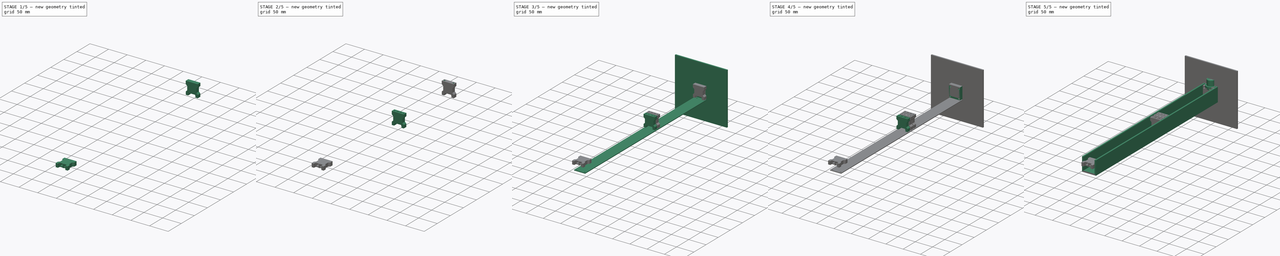
[diagram: build sequence overview — one tinted view per stage of 5, left to right]
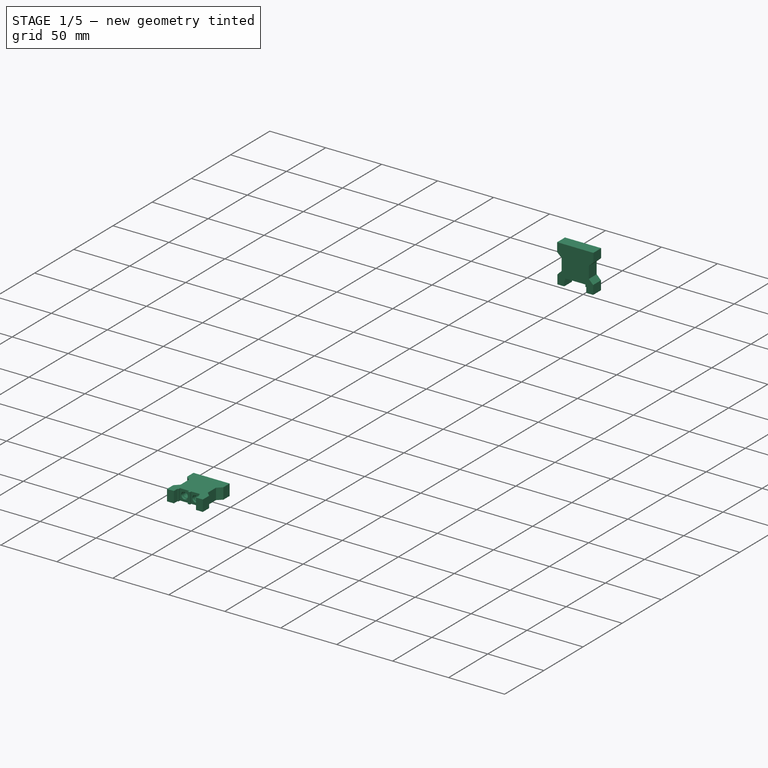
[diagram: stage 1 of 5 — iso view after this stage's code; geometry added in this stage tinted green]
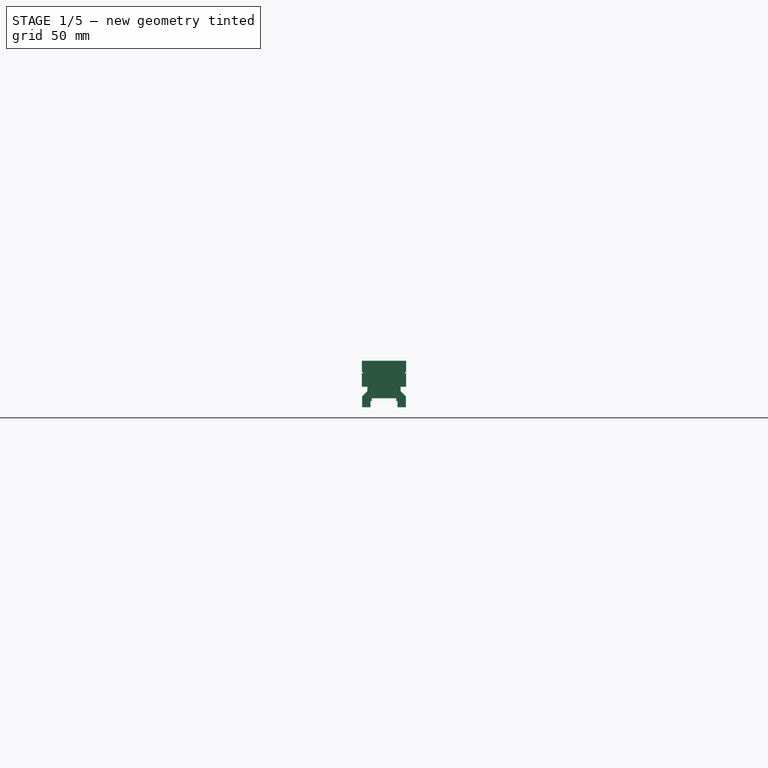
[diagram: stage 1 of 5 — front view after this stage's code; geometry added in this stage tinted green]
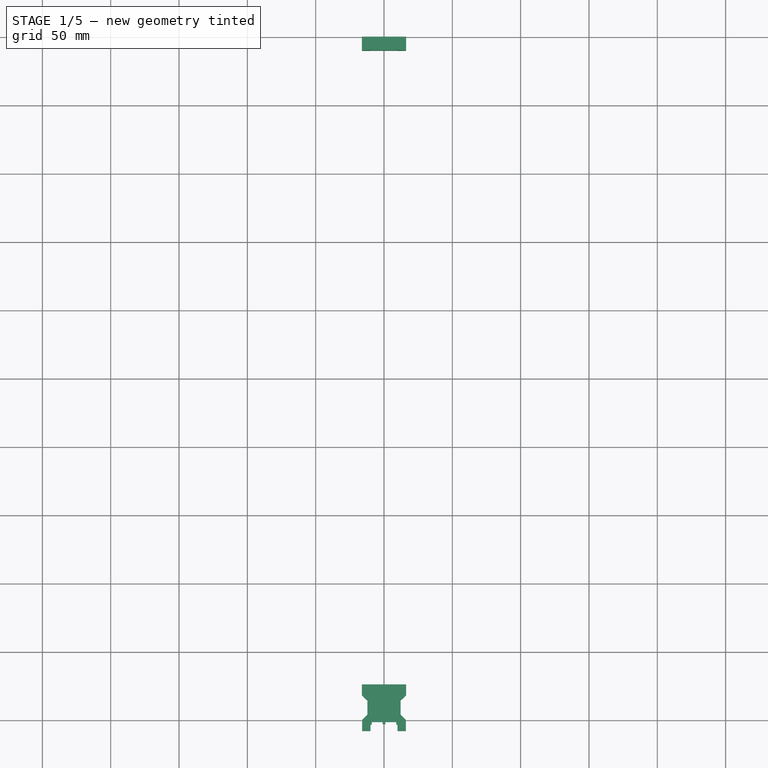
[diagram: stage 1 of 5 — top view after this stage's code; geometry added in this stage tinted green]
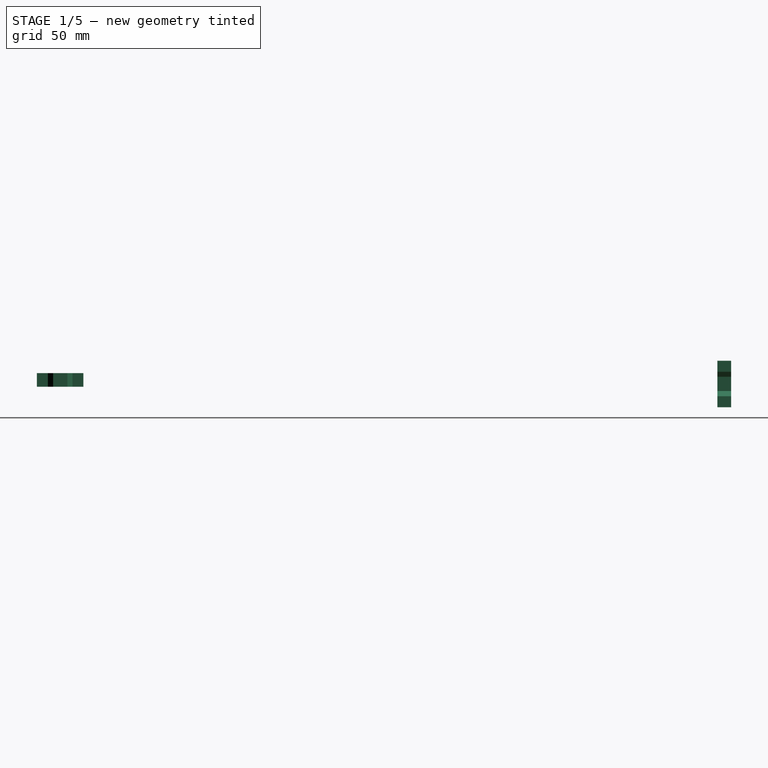
[diagram: stage 1 of 5 — right view after this stage's code; geometry added in this stage tinted green]
FCSTD DOCUMENT  (FreeCAD 0.20R)
Label: Alu-Calibration
License: All rights reserved
LicenseURL: http://en.wikipedia.org/wiki/All_rights_reserved
objects: Sketcher::SketchObject×39, PartDesign::Pocket×18, PartDesign::Pad×13, PartDesign::Body×13, Part::Feature×6, App::Part×6, Part::Loft×4, Part::Mirroring×4, Part::MultiFuse×4, Part::Cut×4, Part::Part2DObjectPython×3, PartDesign::Revolution×2, App::DocumentObjectGroup×1, PartDesign::Draft×1
note: 145 computed .brp shape members not serialized (recipe doc carries the construction recipe); baked Part::Feature solids carry a one-line shape summary decoded from their .brp

FEATURE [Sketcher::SketchObject] Sketch062
  FullyConstrained = true
  MapMode = 5
  Placement = pos=(0,0,0) rot=(1,0,0;1.5708rad)
  Support = -> [XZ_Plane030]
  sketch-geometry (22):
    g0: LineSegment StartX=-16 StartY=4 StartZ=0 EndX=-9.85 EndY=4 EndZ=0
    g1: LineSegment StartX=9.85 StartY=4 StartZ=0 EndX=16 EndY=4 EndZ=0
    g2: LineSegment StartX=16.15 StartY=38 StartZ=0 EndX=-16.15 EndY=38 EndZ=0
    g3: LineSegment StartX=-9.85 StartY=8.6 StartZ=0 EndX=-9 EndY=8.6 EndZ=0
    g4: LineSegment StartX=-9 StartY=8.6 StartZ=0 EndX=-9 EndY=10.6 EndZ=0
    g5: LineSegment StartX=-9 StartY=10.6 StartZ=0 EndX=9 EndY=10.6 EndZ=0
    g6: LineSegment StartX=9 StartY=10.6 StartZ=0 EndX=9 EndY=8.6 EndZ=0
    g7: LineSegment StartX=9 StartY=8.6 StartZ=0 EndX=9.85 EndY=8.6 EndZ=0
    g8: LineSegment StartX=-16 StartY=4 StartZ=0 EndX=-16 EndY=12 EndZ=0
    g9: LineSegment StartX=-16 StartY=12 StartZ=0 EndX=-12.15 EndY=15.85 EndZ=0
    g10: LineSegment StartX=-12.15 StartY=15.85 StartZ=0 EndX=-12.15 EndY=26.3061 EndZ=0
    g11: LineSegment StartX=-12.15 StartY=26.3061 StartZ=0 EndX=-16.15 EndY=30 EndZ=0
    g12: LineSegment StartX=-16.15 StartY=30 StartZ=0 EndX=-16.15 EndY=38 EndZ=0
    g13: LineSegment StartX=16.15 StartY=38 StartZ=0 EndX=16.15 EndY=30 EndZ=0
    g14: LineSegment StartX=16.15 StartY=30 StartZ=0 EndX=12.15 EndY=26.3061 EndZ=0
    g15: LineSegment StartX=12.15 StartY=26.3061 StartZ=0 EndX=12.15 EndY=15.85 EndZ=0
    g16: LineSegment StartX=12.15 StartY=15.85 StartZ=0 EndX=16 EndY=12 EndZ=0
    g17: LineSegment StartX=16 StartY=12 StartZ=0 EndX=16 EndY=4 EndZ=0
    g18: LineSegment StartX=9.85 StartY=8.6 StartZ=0 EndX=9.85 EndY=7 EndZ=0
    g19: LineSegment StartX=9.85 StartY=7 StartZ=0 EndX=9.85 EndY=4 EndZ=0
    g20: LineSegment StartX=-9.85 StartY=8.6 StartZ=0 EndX=-9.85 EndY=7 EndZ=0
    g21: LineSegment StartX=-9.85 StartY=7 StartZ=0 EndX=-9.85 EndY=4 EndZ=0
  constraints (60):
    c: Horizontal(g0)
    c: Horizontal(g1)
    c: Symmetric(g3,g7,g-2)
    c: Symmetric(g2,g2,g-2)
    c: DistanceX(g2,g2) = 32.3
    c: DistanceY(g0,g2) = 34
    c: DistanceY(g0) = 4
    c: DistanceX(g3,g7) = 19.7
    c: Horizontal(g3)
    c: Coincident(g3,g4)
    c: Vertical(g4)
    c: Coincident(g4,g5)
    c: Coincident(g5,g6)
    c: Vertical(g6)
    c: Coincident(g6,g7)
    c: Horizontal(g7)
    c: Symmetric(g4,g5,g-2)
    c: DistanceX(g5,g5) = 18
    c: DistanceY(g1,g7) = 4.6
    c: DistanceY(g4,g4) = 2
    c: Coincident(g0,g8)
    c: Vertical(g8)
    c: Coincident(g8,g9)
    c: Coincident(g9,g10)
    c: Vertical(g10)
    c: Coincident(g10,g11)
    c: Coincident(g11,g12)
    c: Coincident(g12,g2)
    c: Vertical(g12)
    c: Coincident(g2,g13)
    c: Vertical(g13)
    c: Coincident(g13,g14)
    c: Coincident(g14,g15)
    c: Vertical(g15)
    c: Coincident(g15,g16)
    c: Coincident(g16,g17)
    c: Coincident(g17,g1)
    c: Vertical(g17)
    c: Symmetric(g14,g10,g-2)
    c: Equal(g10,g15)
    c: DistanceX(g11,g11) = 4
    c: DistanceY(g8,g8) = 8
    c: DistanceY(g12,g12) = 8
    c: Angle(g8,g9) = 2.35619
    c: Symmetric(g16,g8,g-2)
    c: Equal(g11,g14)
    c: Equal(g14,g16)
    c: DistanceX(g0,g1) = 32
    c: Coincident(g18,g7)
    c: Vertical(g18)
    c: Coincident(g19,g18)
    c: Coincident(g1,g19)
    c: DistanceY(g18,g18) = 1.6
    c: Coincident(g20,g3)
    c: Vertical(g20)
    c: Coincident(g21,g20)
    c: Coincident(g0,g21)
    c: Symmetric(g0,g1,g-2)
    c: Equal(g20,g18)
    c: Vertical(g19)
FEATURE [PartDesign::Pad] Pad030
  Direction = (0,-1,-2e-16)
  Length = 10
  Length2 = 10
  Placement = pos=(0,0,0) rot=(1,0,0;1.5708rad)
  Profile = -> Sketch062
  ReferenceAxis = -> Sketch062 [N_Axis]
  Type = 0
FEATURE [Sketcher::SketchObject] Sketch063
  FullyConstrained = true
  MapMode = 5
  Placement = pos=(0,0,10.6) rot=(1,0,0;3.14159rad)
  Support = -> [Pad030]
  sketch-geometry (3):
    g0: Circle CenterX=-5 CenterY=5 CenterZ=0 NormalX=0 NormalY=0 NormalZ=1 AngleXU=0 Radius=2.6
    g1: Circle CenterX=5 CenterY=5 CenterZ=0 NormalX=0 NormalY=0 NormalZ=1 AngleXU=0 Radius=2.6
    g2: LineSegment StartX=-5 StartY=5 StartZ=0 EndX=5 EndY=5 EndZ=0
  constraints (7):
    c: Coincident(g2,g0)
    c: Coincident(g2,g1)
    c: Equal(g0,g1)
    c: Radius(g0) = 2.6
    c: Symmetric(g0,g1,g-2)
    c: DistanceY(g0) = 5
    c: DistanceX(g2,g2) = 10
FEATURE [PartDesign::Pocket] Pocket025
  BaseFeature = -> Pad030
  Direction = (0,0,1)
  Length = 8
  Length2 = 5
  Placement = pos=(0,0,0) rot=(1,0,0;1.5708rad)
  Profile = -> Sketch063
  ReferenceAxis = -> Sketch063 [N_Axis]
  Type = 0
FEATURE [Sketcher::SketchObject] Sketch068
  FullyConstrained = true
  MapMode = 5
  Placement = pos=(0,0,0) rot=(1,0,0;1.5708rad)
  Support = -> [XZ_Plane031]
  sketch-geometry (26):
    g0: LineSegment StartX=-16 StartY=4 StartZ=0 EndX=-9.85 EndY=4 EndZ=0
    g1: LineSegment StartX=9.85 StartY=4 StartZ=0 EndX=16 EndY=4 EndZ=0
    g2: LineSegment StartX=16.15 StartY=38 StartZ=0 EndX=-16.15 EndY=38 EndZ=0
    g3: LineSegment StartX=-9.85 StartY=8.6 StartZ=0 EndX=-9 EndY=8.6 EndZ=0
    g4: LineSegment StartX=-9 StartY=8.6 StartZ=0 EndX=-9 EndY=10.6 EndZ=0
    g5: LineSegment StartX=9 StartY=10.6 StartZ=0 EndX=9 EndY=8.6 EndZ=0
    g6: LineSegment StartX=9 StartY=8.6 StartZ=0 EndX=9.85 EndY=8.6 EndZ=0
    g7: LineSegment StartX=-16 StartY=4 StartZ=0 EndX=-16 EndY=12 EndZ=0
    g8: LineSegment StartX=-16 StartY=12 StartZ=0 EndX=-12.15 EndY=15.85 EndZ=0
    g9: LineSegment StartX=-12.15 StartY=15.85 StartZ=0 EndX=-12.15 EndY=26.3061 EndZ=0
    g10: LineSegment StartX=-12.15 StartY=26.3061 StartZ=0 EndX=-16.15 EndY=30 EndZ=0
    g11: LineSegment StartX=-16.15 StartY=30 StartZ=0 EndX=-16.15 EndY=38 EndZ=0
    g12: LineSegment StartX=16.15 StartY=38 StartZ=0 EndX=16.15 EndY=30 EndZ=0
    g13: LineSegment StartX=16.15 StartY=30 StartZ=0 EndX=12.15 EndY=26.3061 EndZ=0
    g14: LineSegment StartX=12.15 StartY=26.3061 StartZ=0 EndX=12.15 EndY=15.85 EndZ=0
    g15: LineSegment StartX=12.15 StartY=15.85 StartZ=0 EndX=16 EndY=12 EndZ=0
    g16: LineSegment StartX=16 StartY=12 StartZ=0 EndX=16 EndY=4 EndZ=0
    g17: LineSegment StartX=9.85 StartY=8.6 StartZ=0 EndX=9.85 EndY=7 EndZ=0
    g18: LineSegment StartX=9.85 StartY=7 StartZ=0 EndX=9.85 EndY=4 EndZ=0
    g19: LineSegment StartX=-9.85 StartY=8.6 StartZ=0 EndX=-9.85 EndY=7 EndZ=0
    g20: LineSegment StartX=-9.85 StartY=7 StartZ=0 EndX=-9.85 EndY=4 EndZ=0
    g21: LineSegment StartX=-9 StartY=10.6 StartZ=0 EndX=-1 EndY=10.6 EndZ=0
    g22: LineSegment StartX=-1 StartY=10.6 StartZ=0 EndX=-1 EndY=9 EndZ=0
    g23: LineSegment StartX=-1 StartY=9 StartZ=0 EndX=1 EndY=9 EndZ=0
    g24: LineSegment StartX=1 StartY=9 StartZ=0 EndX=1 EndY=10.6 EndZ=0
    g25: LineSegment StartX=1 StartY=10.6 StartZ=0 EndX=9 EndY=10.6 EndZ=0
  constraints (71):
    c: Horizontal(g0)
    c: Horizontal(g1)
    c: Symmetric(g3,g6,g-2)
    c: Symmetric(g2,g2,g-2)
    c: DistanceX(g2,g2) = 32.3
    c: DistanceY(g0,g2) = 34
    c: DistanceY(g0) = 4
    c: DistanceX(g3,g6) = 19.7
    c: Horizontal(g3)
    c: Coincident(g3,g4)
    c: Vertical(g4)
    c: Vertical(g5)
    c: Coincident(g5,g6)
    c: Horizontal(g6)
    c: Symmetric(g4,g5,g-2)
    c: DistanceX(g4,g5) = 18
    c: DistanceY(g1,g6) = 4.6
    c: DistanceY(g4,g4) = 2
    c: Coincident(g0,g7)
    c: Vertical(g7)
    c: Coincident(g7,g8)
    c: Coincident(g8,g9)
    c: Vertical(g9)
    c: Coincident(g9,g10)
    c: Coincident(g10,g11)
    c: Coincident(g11,g2)
    c: Vertical(g11)
    c: Coincident(g2,g12)
    c: Vertical(g12)
    c: Coincident(g12,g13)
    c: Coincident(g13,g14)
    c: Vertical(g14)
    c: Coincident(g14,g15)
    c: Coincident(g15,g16)
    c: Coincident(g16,g1)
    c: Vertical(g16)
    c: Symmetric(g13,g9,g-2)
    c: Equal(g9,g14)
    c: DistanceX(g10,g10) = 4
    c: DistanceY(g7,g7) = 8
    c: DistanceY(g11,g11) = 8
    c: Angle(g7,g8) = 2.35619
    c: Symmetric(g15,g7,g-2)
    c: Equal(g10,g13)
    c: Equal(g13,g15)
    c: DistanceX(g0,g1) = 32
    c: Coincident(g17,g6)
    c: Vertical(g17)
    c: Coincident(g18,g17)
    c: Coincident(g1,g18)
    c: DistanceY(g17,g17) = 1.6
    c: Coincident(g19,g3)
    c: Vertical(g19)
    c: Coincident(g20,g19)
    c: Coincident(g0,g20)
    c: Symmetric(g0,g1,g-2)
    c: Equal(g19,g17)
    c: Vertical(g18)
    c: Coincident(g21,g4)
    c: Horizontal(g21)
    c: Vertical(g22)
    c: Coincident(g23,g22)
    c: Horizontal(g23)
    c: Coincident(g24,g23)
    c: Vertical(g24)
    c: Coincident(g25,g5)
    c: Coincident(g21,g22)
    c: Coincident(g24,g25)
    c: Symmetric(g21,g24,g-2)
    c: DistanceY(g24,g24) = 1.6
    c: DistanceX(g23,g23) = 2
FEATURE [PartDesign::Pad] Pad031
  Direction = (0,-1,-2e-16)
  Length = 10
  Length2 = 10
  Placement = pos=(0,0,0) rot=(1,0,0;1.5708rad)
  Profile = -> Sketch068
  ReferenceAxis = -> Sketch068 [N_Axis]
  Type = 0
FEATURE [Sketcher::SketchObject] Sketch069
  FullyConstrained = true
  MapMode = 5
  Placement = pos=(0,-2.4e-15,10.6) rot=(1,0,0;3.14159rad)
  Support = -> [Pad031]
  sketch-geometry (3):
    g0: Circle CenterX=-5 CenterY=5 CenterZ=0 NormalX=0 NormalY=0 NormalZ=1 AngleXU=0 Radius=2.6
    g1: Circle CenterX=5 CenterY=5 CenterZ=0 NormalX=0 NormalY=0 NormalZ=1 AngleXU=0 Radius=2.6
    g2: LineSegment StartX=-5 StartY=5 StartZ=0 EndX=5 EndY=5 EndZ=0
  constraints (7):
    c: Coincident(g2,g0)
    c: Coincident(g2,g1)
    c: Equal(g0,g1)
    c: Radius(g0) = 2.6
    c: Symmetric(g0,g1,g-2)
    c: DistanceY(g0) = 5
    c: DistanceX(g2,g2) = 10
FEATURE [PartDesign::Pocket] Pocket028
  BaseFeature = -> Pad031
  Direction = (0,-2e-16,1)
  Length = 10
  Length2 = 5
  Placement = pos=(0,0,0) rot=(1,0,0;1.5708rad)
  Profile = -> Sketch069
  ReferenceAxis = -> Sketch069 [N_Axis]
  Type = 0
FEATURE [Sketcher::SketchObject] Sketch070
  ExternalGeometry = -> [Pocket028]
  FullyConstrained = true
  MapMode = 5
  Placement = pos=(0,-2.4e-15,10.6) rot=(1,0,0;3.14159rad)
  Support = -> [Pocket028]
  sketch-geometry (2):
    g0: Circle CenterX=-5 CenterY=5 CenterZ=0 NormalX=0 NormalY=0 NormalZ=1 AngleXU=0 Radius=3
    g1: Circle CenterX=5 CenterY=5 CenterZ=0 NormalX=0 NormalY=0 NormalZ=1 AngleXU=0 Radius=3
  constraints (4):
    c: Radius(g0) = 3
    c: Equal(g1,g0)
    c: Symmetric(g1,g0,g-2)
    c: Coincident(g0,g-3)
FEATURE [PartDesign::Pocket] Pocket029
  BaseFeature = -> Pocket028
  Direction = (0,-2e-16,1)
  Length = 2
  Length2 = 5
  Placement = pos=(0,0,0) rot=(1,0,0;1.5708rad)
  Profile = -> Sketch070
  ReferenceAxis = -> Sketch070 [N_Axis]
  Type = 0
FEATURE [Sketcher::SketchObject] Sketch071
  AttachmentOffset = pos=(0,0,38) rot=(0,0,1;0rad)
  FullyConstrained = true
  MapMode = 5
  Placement = pos=(0,0,38) rot=(0,0,1;0rad)
  sketch-geometry (4):
    g0: ArcOfCircle CenterX=-6.3 CenterY=0 CenterZ=0 NormalX=0 NormalY=0 NormalZ=1 AngleXU=0 Radius=3 StartAngle=1.5708 EndAngle=4.71239
    g1: ArcOfCircle CenterX=-3.3 CenterY=0 CenterZ=0 NormalX=0 NormalY=0 NormalZ=1 AngleXU=0 Radius=3 StartAngle=4.71239 EndAngle=7.85398
    g2: LineSegment StartX=-6.3 StartY=-3 StartZ=0 EndX=-3.3 EndY=-3 EndZ=0
    g3: LineSegment StartX=-3.3 StartY=3 StartZ=0 EndX=-6.3 EndY=3 EndZ=0
  constraints (10):
    c: Tangent(g0,g2) = -1.5708
    c: Tangent(g2,g1) = -1.5708
    c: Tangent(g1,g3) = -1.5708
    c: Tangent(g3,g0) = -1.5708
    c: Equal(g0,g1)
    c: Horizontal(g3)
    c: DistanceX(g3,g3) = 3
    c: Radius(g1) = 3
    c: DistanceX(g1) = -3.3
    c: PointOnObject(g1,g-1)
FEATURE [Sketcher::SketchObject] Sketch072
  AttachmentOffset = pos=(0,0,18) rot=(0,0,1;0rad)
  FullyConstrained = true
  MapMode = 5
  Placement = pos=(0,0,20) rot=(0,0,1;0rad)
  sketch-geometry (1):
    g0: Circle CenterX=-5 CenterY=0 CenterZ=0 NormalX=0 NormalY=0 NormalZ=1 AngleXU=0 Radius=2.7
  constraints (3):
    c: PointOnObject(g0,g-1)
    c: DistanceX(g0) = -5
    c: Radius(g0) = 2.7
FEATURE [Part::Loft] Loft004
  Closed = false
  MaxDegree = 5
  Ruled = false
  Sections = -> [Sketch072,Sketch071]
  Solid = true
FEATURE [Part::Mirroring] Part__Mirroring004  label="Loft001 (Mirror #2)003"
  Base = (0,0,0)
  Normal = (1,0,0)
  Source = -> Loft004
FEATURE [Part::MultiFuse] Fusion004
  Shapes = -> [Loft004,Part__Mirroring004]
FEATURE [Sketcher::SketchObject] Sketch073
  FullyConstrained = true
  MapMode = 5
  Placement = pos=(0,-8.4e-15,38) rot=(0,0,1;3.14159rad)
  Support = -> [Pocket029]
  sketch-geometry (3):
    g0: Circle CenterX=-12 CenterY=5 CenterZ=0 NormalX=0 NormalY=0 NormalZ=1 AngleXU=0 Radius=2
    g1: Circle CenterX=12 CenterY=5 CenterZ=0 NormalX=0 NormalY=0 NormalZ=1 AngleXU=0 Radius=2
    g2: LineSegment StartX=-12 StartY=5 StartZ=0 EndX=12 EndY=5 EndZ=0
  constraints (7):
    c: Coincident(g2,g0)
    c: Coincident(g2,g1)
    c: Symmetric(g0,g1,g-2)
    c: DistanceX(g2,g2) = 24
    c: Equal(g0,g1)
    c: Radius(g1) = 2
    c: DistanceY(g0) = 5
FEATURE [PartDesign::Pocket] Pocket030
  BaseFeature = -> Pocket029
  Direction = (0,2e-16,-1)
  Length = 8
  Length2 = 5
  Placement = pos=(0,0,0) rot=(1,0,0;1.5708rad)
  Profile = -> Sketch073
  ReferenceAxis = -> Sketch073 [N_Axis]
  Type = 0
FEATURE [PartDesign::Body] Body025
  Group = -> [Sketch068,Pad031,Sketch069,Pocket028,Sketch070,Pocket029,Sketch073,Pocket030]
  Origin = -> Origin031
  Placement = pos=(0,5,0) rot=(0,0,1;0rad)
  Tip = -> Pocket030
FEATURE [Part::Cut] Cut003  label="Sensor-holder-sun-3"
  Base = -> Body025
  Placement = pos=(0,-512,24) rot=(-1,0,0;1.5708rad)
  Tool = -> Fusion004
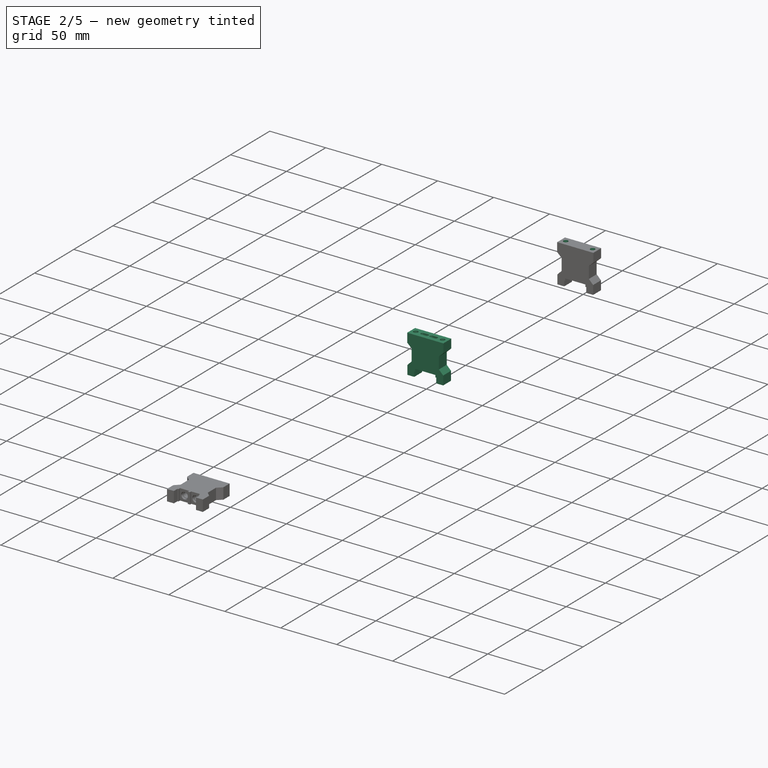
[diagram: stage 2 of 5 — iso view after this stage's code; geometry added in this stage tinted green]
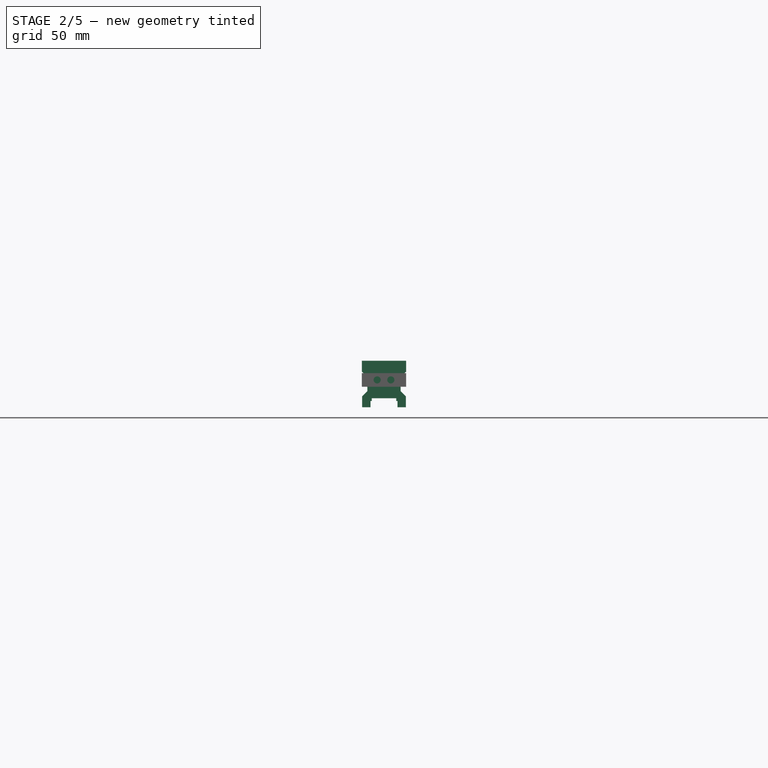
[diagram: stage 2 of 5 — front view after this stage's code; geometry added in this stage tinted green]
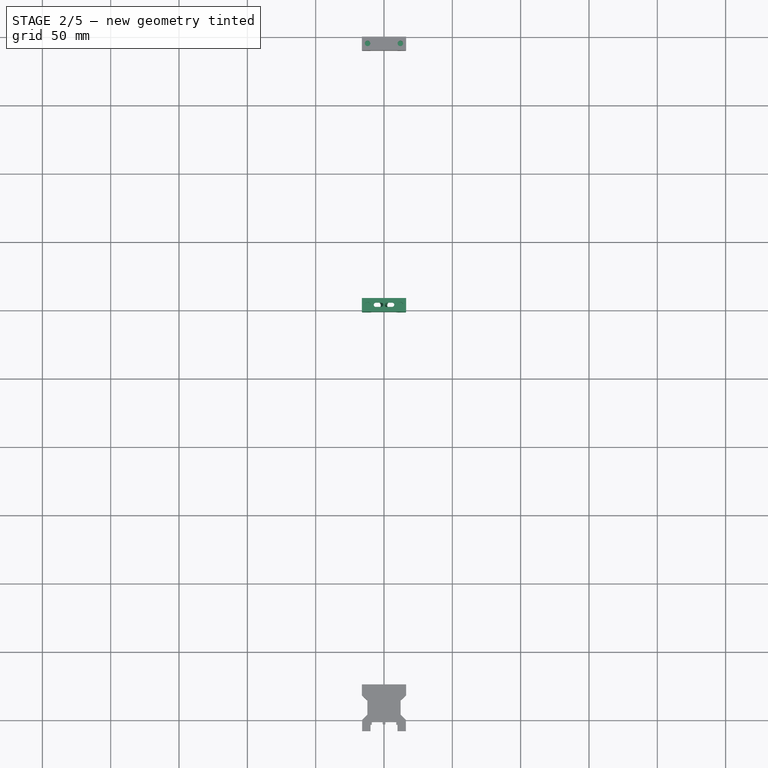
[diagram: stage 2 of 5 — top view after this stage's code; geometry added in this stage tinted green]
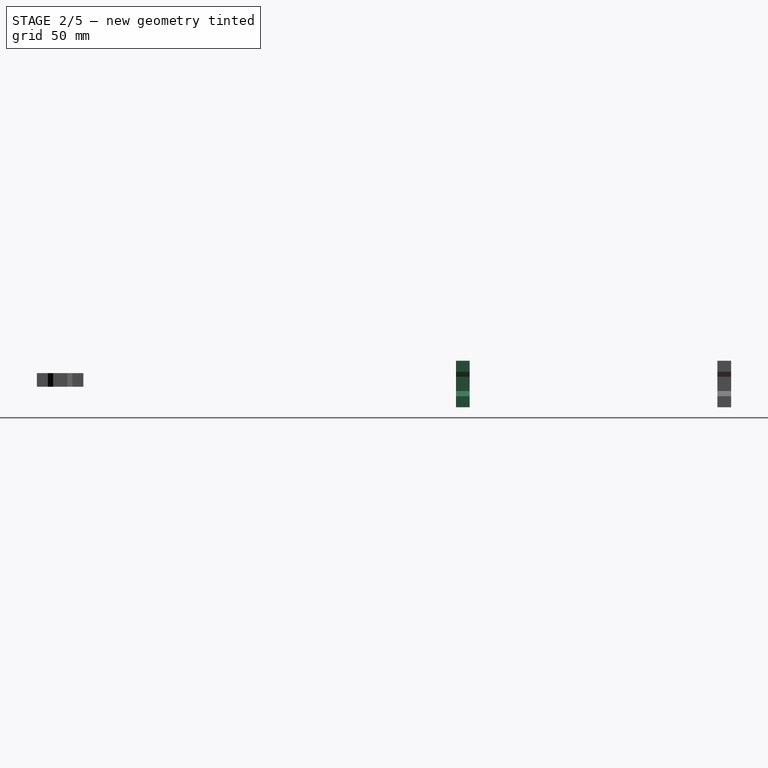
[diagram: stage 2 of 5 — right view after this stage's code; geometry added in this stage tinted green]
FEATURE [PartDesign::Body] Body021  label="Rubber-Feet"
  Group = -> [Sketch053,Pad027,Draft]
  Origin = -> Origin027
  Placement = pos=(-65,6,-45) rot=(0,0,1;0rad)
  Tip = -> Draft
FEATURE [Sketcher::SketchObject] Sketch056
  FullyConstrained = true
  MapMode = 5
  Placement = pos=(0,0,0) rot=(1,0,0;1.5708rad)
  Support = -> [XZ_Plane029]
  sketch-geometry (22):
    g0: LineSegment StartX=-16 StartY=4 StartZ=0 EndX=-9.85 EndY=4 EndZ=0
    g1: LineSegment StartX=9.85 StartY=4 StartZ=0 EndX=16 EndY=4 EndZ=0
    g2: LineSegment StartX=16.15 StartY=38 StartZ=0 EndX=-16.15 EndY=38 EndZ=0
    g3: LineSegment StartX=-9.85 StartY=8.6 StartZ=0 EndX=-9 EndY=8.6 EndZ=0
    g4: LineSegment StartX=-9 StartY=8.6 StartZ=0 EndX=-9 EndY=10.6 EndZ=0
    g5: LineSegment StartX=-9 StartY=10.6 StartZ=0 EndX=9 EndY=10.6 EndZ=0
    g6: LineSegment StartX=9 StartY=10.6 StartZ=0 EndX=9 EndY=8.6 EndZ=0
    g7: LineSegment StartX=9 StartY=8.6 StartZ=0 EndX=9.85 EndY=8.6 EndZ=0
    g8: LineSegment StartX=-16 StartY=4 StartZ=0 EndX=-16 EndY=12 EndZ=0
    g9: LineSegment StartX=-16 StartY=12 StartZ=0 EndX=-12.15 EndY=15.85 EndZ=0
    g10: LineSegment StartX=-12.15 StartY=15.85 StartZ=0 EndX=-12.15 EndY=26.3061 EndZ=0
    g11: LineSegment StartX=-12.15 StartY=26.3061 StartZ=0 EndX=-16.15 EndY=30 EndZ=0
    g12: LineSegment StartX=-16.15 StartY=30 StartZ=0 EndX=-16.15 EndY=38 EndZ=0
    g13: LineSegment StartX=16.15 StartY=38 StartZ=0 EndX=16.15 EndY=30 EndZ=0
    g14: LineSegment StartX=16.15 StartY=30 StartZ=0 EndX=12.15 EndY=26.3061 EndZ=0
    g15: LineSegment StartX=12.15 StartY=26.3061 StartZ=0 EndX=12.15 EndY=15.85 EndZ=0
    g16: LineSegment StartX=12.15 StartY=15.85 StartZ=0 EndX=16 EndY=12 EndZ=0
    g17: LineSegment StartX=16 StartY=12 StartZ=0 EndX=16 EndY=4 EndZ=0
    g18: LineSegment StartX=9.85 StartY=8.6 StartZ=0 EndX=9.85 EndY=7 EndZ=0
    g19: LineSegment StartX=9.85 StartY=7 StartZ=0 EndX=9.85 EndY=4 EndZ=0
    g20: LineSegment StartX=-9.85 StartY=8.6 StartZ=0 EndX=-9.85 EndY=7 EndZ=0
    g21: LineSegment StartX=-9.85 StartY=7 StartZ=0 EndX=-9.85 EndY=4 EndZ=0
  constraints (60):
    c: Horizontal(g0)
    c: Horizontal(g1)
    c: Symmetric(g3,g7,g-2)
    c: Symmetric(g2,g2,g-2)
    c: DistanceX(g2,g2) = 32.3
    c: DistanceY(g0,g2) = 34
    c: DistanceY(g0) = 4
    c: DistanceX(g3,g7) = 19.7
    c: Horizontal(g3)
    c: Coincident(g3,g4)
    c: Vertical(g4)
    c: Coincident(g4,g5)
    c: Coincident(g5,g6)
    c: Vertical(g6)
    c: Coincident(g6,g7)
    c: Horizontal(g7)
    c: Symmetric(g4,g5,g-2)
    c: DistanceX(g5,g5) = 18
    c: DistanceY(g1,g7) = 4.6
    c: DistanceY(g4,g4) = 2
    c: Coincident(g0,g8)
    c: Vertical(g8)
    c: Coincident(g8,g9)
    c: Coincident(g9,g10)
    c: Vertical(g10)
    c: Coincident(g10,g11)
    c: Coincident(g11,g12)
    c: Coincident(g12,g2)
    c: Vertical(g12)
    c: Coincident(g2,g13)
    c: Vertical(g13)
    c: Coincident(g13,g14)
    c: Coincident(g14,g15)
    c: Vertical(g15)
    c: Coincident(g15,g16)
    c: Coincident(g16,g17)
    c: Coincident(g17,g1)
    c: Vertical(g17)
    c: Symmetric(g14,g10,g-2)
    c: Equal(g10,g15)
    c: DistanceX(g11,g11) = 4
    c: DistanceY(g8,g8) = 8
    c: DistanceY(g12,g12) = 8
    c: Angle(g8,g9) = 2.35619
    c: Symmetric(g16,g8,g-2)
    c: Equal(g11,g14)
    c: Equal(g14,g16)
    c: DistanceX(g0,g1) = 32
    c: Coincident(g18,g7)
    c: Vertical(g18)
    c: Coincident(g19,g18)
    c: Coincident(g1,g19)
    c: DistanceY(g18,g18) = 1.6
    c: Coincident(g20,g3)
    c: Vertical(g20)
    c: Coincident(g21,g20)
    c: Coincident(g0,g21)
    c: Symmetric(g0,g1,g-2)
    c: Equal(g20,g18)
    c: Vertical(g19)
FEATURE [PartDesign::Pad] Pad029
  Direction = (0,-1,-2e-16)
  Length = 10
  Length2 = 10
  Placement = pos=(0,0,0) rot=(1,0,0;1.5708rad)
  Profile = -> Sketch056
  ReferenceAxis = -> Sketch056 [N_Axis]
  Type = 0
FEATURE [Sketcher::SketchObject] Sketch057
  FullyConstrained = true
  MapMode = 5
  Placement = pos=(0,0,10.6) rot=(1,0,0;3.14159rad)
  Support = -> [Pad029]
  sketch-geometry (3):
    g0: Circle CenterX=-5 CenterY=5 CenterZ=0 NormalX=0 NormalY=0 NormalZ=1 AngleXU=0 Radius=2.6
    g1: Circle CenterX=5 CenterY=5 CenterZ=0 NormalX=0 NormalY=0 NormalZ=1 AngleXU=0 Radius=2.6
    g2: LineSegment StartX=-5 StartY=5 StartZ=0 EndX=5 EndY=5 EndZ=0
  constraints (7):
    c: Coincident(g2,g0)
    c: Coincident(g2,g1)
    c: Equal(g0,g1)
    c: Radius(g0) = 2.6
    c: Symmetric(g0,g1,g-2)
    c: DistanceY(g0) = 5
    c: DistanceX(g2,g2) = 10
FEATURE [PartDesign::Pocket] Pocket022
  BaseFeature = -> Pad029
  Direction = (0,-2e-16,1)
  Length = 18
  Length2 = 5
  Placement = pos=(0,0,0) rot=(1,0,0;1.5708rad)
  Profile = -> Sketch057
  ReferenceAxis = -> Sketch057 [N_Axis]
  Type = 0
FEATURE [Sketcher::SketchObject] Sketch058
  ExternalGeometry = -> [Pocket022]
  FullyConstrained = true
  MapMode = 5
  Placement = pos=(0,0,10.6) rot=(1,0,0;3.14159rad)
  Support = -> [Pocket022]
  sketch-geometry (2):
    g0: Circle CenterX=-5 CenterY=5 CenterZ=0 NormalX=0 NormalY=0 NormalZ=1 AngleXU=0 Radius=3
    g1: Circle CenterX=5 CenterY=5 CenterZ=0 NormalX=0 NormalY=0 NormalZ=1 AngleXU=0 Radius=3
  constraints (4):
    c: Radius(g0) = 3
    c: Equal(g1,g0)
    c: Coincident(g1,g-4)
    c: Coincident(g0,g-3)
FEATURE [PartDesign::Pocket] Pocket023
  BaseFeature = -> Pocket022
  Direction = (0,-2e-16,1)
  Length = 10
  Length2 = 5
  Placement = pos=(0,0,0) rot=(1,0,0;1.5708rad)
  Profile = -> Sketch058
  ReferenceAxis = -> Sketch058 [N_Axis]
  Type = 0
FEATURE [Sketcher::SketchObject] Sketch061
  FullyConstrained = true
  MapMode = 5
  Placement = pos=(0,0,38) rot=(0,0,1;3.14159rad)
  Support = -> [Pocket023]
  sketch-geometry (3):
    g0: Circle CenterX=-12 CenterY=5 CenterZ=0 NormalX=0 NormalY=0 NormalZ=1 AngleXU=0 Radius=2
    g1: Circle CenterX=12 CenterY=5 CenterZ=0 NormalX=0 NormalY=0 NormalZ=1 AngleXU=0 Radius=2
    g2: LineSegment StartX=-12 StartY=5 StartZ=0 EndX=12 EndY=5 EndZ=0
  constraints (7):
    c: Coincident(g2,g0)
    c: Coincident(g2,g1)
    c: Symmetric(g0,g1,g-2)
    c: DistanceX(g2,g2) = 24
    c: Equal(g0,g1)
    c: Radius(g1) = 2
    c: DistanceY(g0) = 5
FEATURE [PartDesign::Pocket] Pocket024
  BaseFeature = -> Pocket023
  Direction = (0,2e-16,-1)
  Length = 8
  Length2 = 5
  Placement = pos=(0,0,0) rot=(1,0,0;1.5708rad)
  Profile = -> Sketch061
  ReferenceAxis = -> Sketch061 [N_Axis]
  Type = 0
FEATURE [Sketcher::SketchObject] Sketch064
  ExternalGeometry = -> [Pocket025]
  FullyConstrained = true
  MapMode = 5
  Placement = pos=(0,0,10.6) rot=(1,0,0;3.14159rad)
  Support = -> [Pocket025]
  sketch-geometry (2):
    g0: Circle CenterX=-5 CenterY=5 CenterZ=0 NormalX=0 NormalY=0 NormalZ=1 AngleXU=0 Radius=3
    g1: Circle CenterX=5 CenterY=5 CenterZ=0 NormalX=0 NormalY=0 NormalZ=1 AngleXU=0 Radius=3
  constraints (4):
    c: Radius(g0) = 3
    c: Equal(g1,g0)
    c: Coincident(g1,g-4)
    c: Coincident(g0,g-3)
FEATURE [PartDesign::Pocket] Pocket026
  BaseFeature = -> Pocket025
  Direction = (0,1e-16,1)
  Length = 1
  Length2 = 5
  Placement = pos=(0,0,0) rot=(1,0,0;1.5708rad)
  Profile = -> Sketch064
  ReferenceAxis = -> Sketch064 [N_Axis]
  Type = 0
FEATURE [Sketcher::SketchObject] Sketch065
  AttachmentOffset = pos=(0,0,38) rot=(0,0,1;0rad)
  FullyConstrained = true
  MapMode = 5
  Placement = pos=(0,0,38) rot=(0,0,1;0rad)
  sketch-geometry (4):
    g0: ArcOfCircle CenterX=-6 CenterY=1.145e-13 CenterZ=0 NormalX=0 NormalY=0 NormalZ=1 AngleXU=0 Radius=1.5 StartAngle=1.5708 EndAngle=4.71239
    g1: ArcOfCircle CenterX=-2 CenterY=0 CenterZ=0 NormalX=0 NormalY=0 NormalZ=1 AngleXU=0 Radius=1.5 StartAngle=4.71239 EndAngle=7.85398
    g2: LineSegment StartX=-6 StartY=-1.5 StartZ=0 EndX=-2 EndY=-1.5 EndZ=0
    g3: LineSegment StartX=-2 StartY=1.5 StartZ=0 EndX=-6 EndY=1.5 EndZ=0
  constraints (10):
    c: Tangent(g0,g2) = -1.5708
    c: Tangent(g2,g1) = -1.5708
    c: Tangent(g1,g3) = -1.5708
    c: Tangent(g3,g0) = -1.5708
    c: Equal(g0,g1)
    c: Horizontal(g3)
    c: DistanceX(g3,g3) = 4
    c: Radius(g1) = 1.5
    c: DistanceX(g1) = -2
    c: PointOnObject(g1,g-1)
FEATURE [Sketcher::SketchObject] Sketch066
  AttachmentOffset = pos=(0,0,18) rot=(0,0,1;0rad)
  FullyConstrained = true
  MapMode = 5
  Placement = pos=(0,0,18) rot=(0,0,1;0rad)
  sketch-geometry (1):
    g0: Circle CenterX=-5 CenterY=0 CenterZ=0 NormalX=0 NormalY=0 NormalZ=1 AngleXU=0 Radius=2.7
  constraints (3):
    c: PointOnObject(g0,g-1)
    c: DistanceX(g0) = -5
    c: Radius(g0) = 2.7
FEATURE [Part::Loft] Loft003
  Closed = false
  MaxDegree = 5
  Ruled = false
  Sections = -> [Sketch066,Sketch065]
  Solid = true
FEATURE [Part::Mirroring] Part__Mirroring003  label="Loft001 (Mirror #2)002"
  Base = (0,0,0)
  Normal = (1,0,0)
  Source = -> Loft003
FEATURE [Part::MultiFuse] Fusion003
  Shapes = -> [Loft003,Part__Mirroring003]
FEATURE [Sketcher::SketchObject] Sketch067
  FullyConstrained = true
  MapMode = 5
  Placement = pos=(0,0,38) rot=(0,0,1;3.14159rad)
  Support = -> [Pocket026]
  sketch-geometry (3):
    g0: Circle CenterX=-12 CenterY=5 CenterZ=0 NormalX=0 NormalY=0 NormalZ=1 AngleXU=0 Radius=2
    g1: Circle CenterX=12 CenterY=5 CenterZ=0 NormalX=0 NormalY=0 NormalZ=1 AngleXU=0 Radius=2
    g2: LineSegment StartX=-12 StartY=5 StartZ=0 EndX=12 EndY=5 EndZ=0
  constraints (7):
    c: Coincident(g2,g0)
    c: Coincident(g2,g1)
    c: Symmetric(g0,g1,g-2)
    c: DistanceX(g2,g2) = 24
    c: Equal(g0,g1)
    c: Radius(g1) = 2
    c: DistanceY(g0) = 5
FEATURE [PartDesign::Pocket] Pocket027
  BaseFeature = -> Pocket026
  Direction = (0,-2e-16,-1)
  Length = 8
  Length2 = 5
  Placement = pos=(0,0,0) rot=(1,0,0;1.5708rad)
  Profile = -> Sketch067
  ReferenceAxis = -> Sketch067 [N_Axis]
  Type = 0
FEATURE [PartDesign::Body] Body024
  Group = -> [Sketch062,Pad030,Sketch063,Pocket025,Sketch064,Pocket026,Sketch067,Pocket027]
  Origin = -> Origin030
  Placement = pos=(0,5,0) rot=(0,0,1;0rad)
  Tip = -> Pocket027
FEATURE [Part::Cut] Cut002  label="Sensor-holder-sun-2"
  Base = -> Body024
  Placement = pos=(0,-196.33,0) rot=(0,0,1;0rad)
  Tool = -> Fusion003
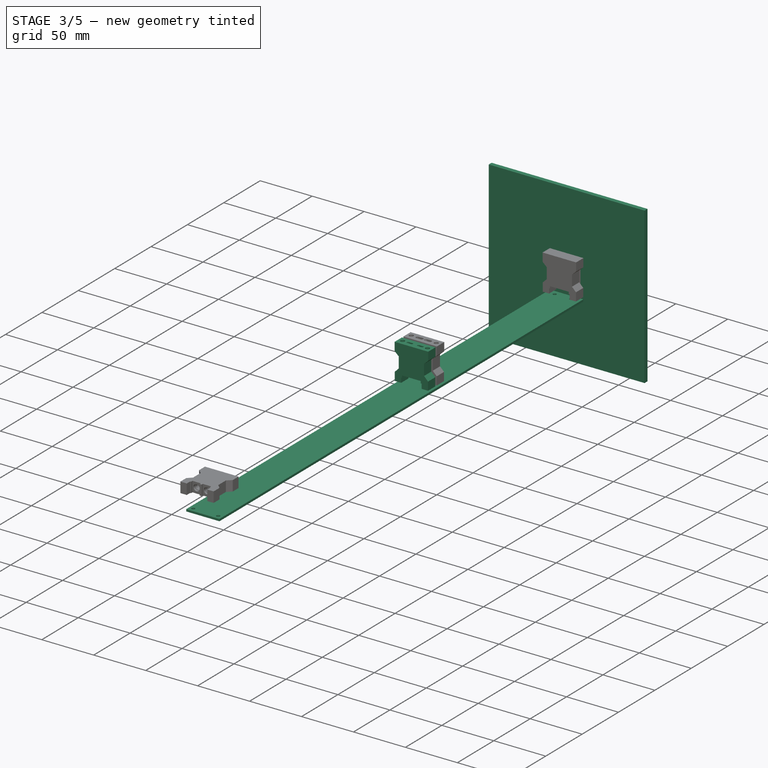
[diagram: stage 3 of 5 — iso view after this stage's code; geometry added in this stage tinted green]
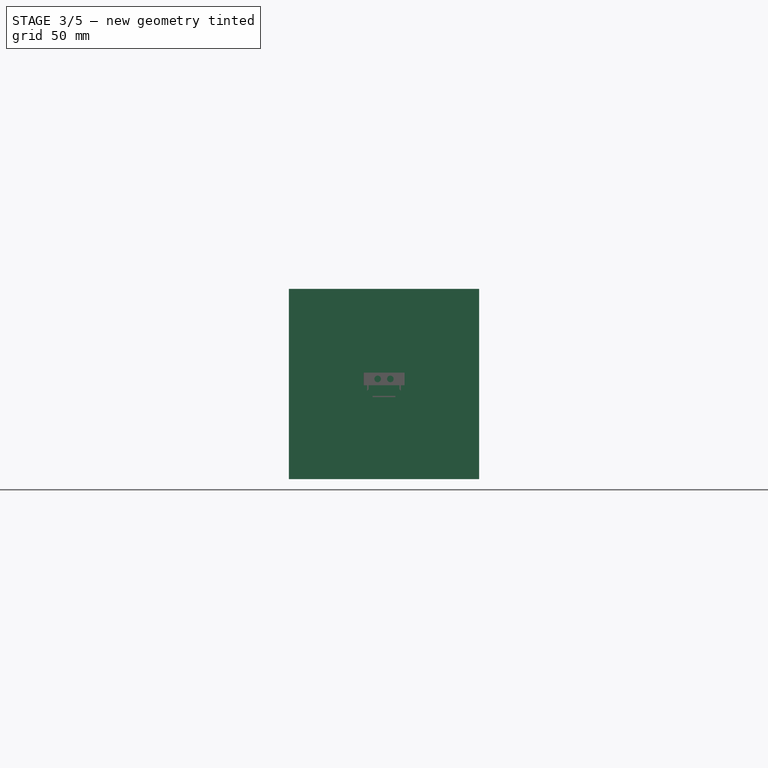
[diagram: stage 3 of 5 — front view after this stage's code; geometry added in this stage tinted green]
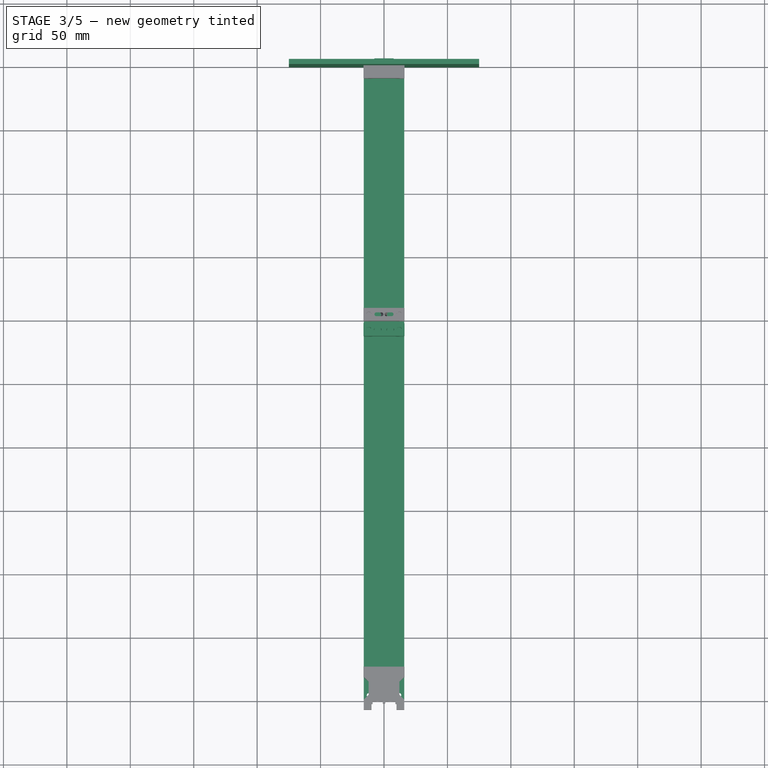
[diagram: stage 3 of 5 — top view after this stage's code; geometry added in this stage tinted green]
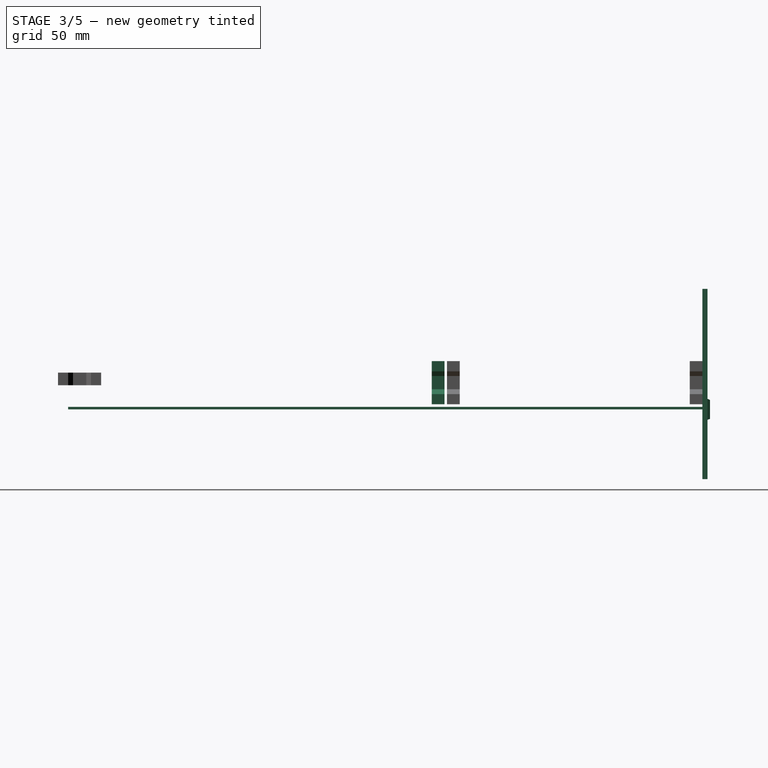
[diagram: stage 3 of 5 — right view after this stage's code; geometry added in this stage tinted green]
FEATURE [PartDesign::Body] Body008  label="USB-C"
  Group = -> [Sketch017,Revolution001]
  Origin = -> Origin014
  Placement = pos=(0,-25,-2) rot=(0,0,1;0rad)
  Tip = -> Revolution001
FEATURE [Sketcher::SketchObject] Sketch026
  FullyConstrained = true
  MapMode = 5
  Placement = pos=(0,0,0) rot=(1,0,0;1.5708rad)
  Support = -> [XZ_Plane017]
  sketch-geometry (22):
    g0: LineSegment StartX=-16 StartY=4 StartZ=0 EndX=-9.85 EndY=4 EndZ=0
    g1: LineSegment StartX=9.85 StartY=4 StartZ=0 EndX=16 EndY=4 EndZ=0
    g2: LineSegment StartX=16.15 StartY=38 StartZ=0 EndX=-16.15 EndY=38 EndZ=0
    g3: LineSegment StartX=-9.85 StartY=8.6 StartZ=0 EndX=-9 EndY=8.6 EndZ=0
    g4: LineSegment StartX=-9 StartY=8.6 StartZ=0 EndX=-9 EndY=10.6 EndZ=0
    g5: LineSegment StartX=-9 StartY=10.6 StartZ=0 EndX=9 EndY=10.6 EndZ=0
    g6: LineSegment StartX=9 StartY=10.6 StartZ=0 EndX=9 EndY=8.6 EndZ=0
    g7: LineSegment StartX=9 StartY=8.6 StartZ=0 EndX=9.85 EndY=8.6 EndZ=0
    g8: LineSegment StartX=-16 StartY=4 StartZ=0 EndX=-16 EndY=12 EndZ=0
    g9: LineSegment StartX=-16 StartY=12 StartZ=0 EndX=-12.15 EndY=15.85 EndZ=0
    g10: LineSegment StartX=-12.15 StartY=15.85 StartZ=0 EndX=-12.15 EndY=26.3061 EndZ=0
    g11: LineSegment StartX=-12.15 StartY=26.3061 StartZ=0 EndX=-16.15 EndY=30 EndZ=0
    g12: LineSegment StartX=-16.15 StartY=30 StartZ=0 EndX=-16.15 EndY=38 EndZ=0
    g13: LineSegment StartX=16.15 StartY=38 StartZ=0 EndX=16.15 EndY=30 EndZ=0
    g14: LineSegment StartX=16.15 StartY=30 StartZ=0 EndX=12.15 EndY=26.3061 EndZ=0
    g15: LineSegment StartX=12.15 StartY=26.3061 StartZ=0 EndX=12.15 EndY=15.85 EndZ=0
    g16: LineSegment StartX=12.15 StartY=15.85 StartZ=0 EndX=16 EndY=12 EndZ=0
    g17: LineSegment StartX=16 StartY=12 StartZ=0 EndX=16 EndY=4 EndZ=0
    g18: LineSegment StartX=9.85 StartY=8.6 StartZ=0 EndX=9.85 EndY=7 EndZ=0
    g19: LineSegment StartX=9.85 StartY=7 StartZ=0 EndX=9.85 EndY=4 EndZ=0
    g20: LineSegment StartX=-9.85 StartY=8.6 StartZ=0 EndX=-9.85 EndY=7 EndZ=0
    g21: LineSegment StartX=-9.85 StartY=7 StartZ=0 EndX=-9.85 EndY=4 EndZ=0
  constraints (60):
    c: Horizontal(g0)
    c: Horizontal(g1)
    c: Symmetric(g3,g7,g-2)
    c: Symmetric(g2,g2,g-2)
    c: DistanceX(g2,g2) = 32.3
    c: DistanceY(g0,g2) = 34
    c: DistanceY(g0) = 4
    c: DistanceX(g3,g7) = 19.7
    c: Horizontal(g3)
    c: Coincident(g3,g4)
    c: Vertical(g4)
    c: Coincident(g4,g5)
    c: Coincident(g5,g6)
    c: Vertical(g6)
    c: Coincident(g6,g7)
    c: Horizontal(g7)
    c: Symmetric(g4,g5,g-2)
    c: DistanceX(g5,g5) = 18
    c: DistanceY(g1,g7) = 4.6
    c: DistanceY(g4,g4) = 2
    c: Coincident(g0,g8)
    c: Vertical(g8)
    c: Coincident(g8,g9)
    c: Coincident(g9,g10)
    c: Vertical(g10)
    c: Coincident(g10,g11)
    c: Coincident(g11,g12)
    c: Coincident(g12,g2)
    c: Vertical(g12)
    c: Coincident(g2,g13)
    c: Vertical(g13)
    c: Coincident(g13,g14)
    c: Coincident(g14,g15)
    c: Vertical(g15)
    c: Coincident(g15,g16)
    c: Coincident(g16,g17)
    c: Coincident(g17,g1)
    c: Vertical(g17)
    c: Symmetric(g14,g10,g-2)
    c: Equal(g10,g15)
    c: DistanceX(g11,g11) = 4
    c: DistanceY(g8,g8) = 8
    c: DistanceY(g12,g12) = 8
    c: Angle(g8,g9) = 2.35619
    c: Symmetric(g16,g8,g-2)
    c: Equal(g11,g14)
    c: Equal(g14,g16)
    c: DistanceX(g0,g1) = 32
    c: Coincident(g18,g7)
    c: Vertical(g18)
    c: Coincident(g19,g18)
    c: Coincident(g1,g19)
    c: DistanceY(g18,g18) = 1.6
    c: Coincident(g20,g3)
    c: Vertical(g20)
    c: Coincident(g21,g20)
    c: Coincident(g0,g21)
    c: Symmetric(g0,g1,g-2)
    c: Equal(g20,g18)
    c: Vertical(g19)
FEATURE [PartDesign::Pad] Pad017
  Direction = (0,-1,-2e-16)
  Length = 10
  Length2 = 10
  Placement = pos=(0,0,0) rot=(1,0,0;1.5708rad)
  Profile = -> Sketch026
  ReferenceAxis = -> Sketch026 [N_Axis]
  Type = 0
FEATURE [PartDesign::Body] Body012  label="ABS-Bottom"
  Group = -> [Sketch032,Pad018,Sketch033,Pad019,Sketch034,Pocket013,Sketch035,Pocket014,Sketch039,Pocket015]
  Origin = -> Origin018
  Tip = -> Pocket015
FEATURE [Sketcher::SketchObject] Sketch042
  FullyConstrained = true
  MapMode = 5
  sketch-geometry (24):
    g0: LineSegment StartX=-16 StartY=-500 StartZ=0 EndX=16 EndY=-500 EndZ=0
    g1: LineSegment StartX=16 StartY=-500 StartZ=0 EndX=16 EndY=0 EndZ=0
    g2: LineSegment StartX=16 StartY=0 StartZ=0 EndX=-16 EndY=0 EndZ=0
    g3: LineSegment StartX=-16 StartY=0 StartZ=0 EndX=-16 EndY=-500 EndZ=0
    g4: LineSegment StartX=-8 StartY=-5 StartZ=0 EndX=8 EndY=-5 EndZ=0
    g5: Circle CenterX=-8 CenterY=-5 CenterZ=0 NormalX=0 NormalY=0 NormalZ=1 AngleXU=0 Radius=1.6
    g6: Circle CenterX=8 CenterY=-5 CenterZ=0 NormalX=0 NormalY=0 NormalZ=1 AngleXU=0 Radius=1.6
    g7: Circle CenterX=-12 CenterY=-496 CenterZ=0 NormalX=0 NormalY=0 NormalZ=1 AngleXU=0 Radius=1.6
    g8: Circle CenterX=12 CenterY=-496 CenterZ=0 NormalX=0 NormalY=0 NormalZ=1 AngleXU=0 Radius=1.6
    g9: LineSegment StartX=-12 StartY=-496 StartZ=0 EndX=12 EndY=-496 EndZ=0
    g10: Circle CenterX=0 CenterY=-25 CenterZ=0 NormalX=0 NormalY=0 NormalZ=1 AngleXU=0 Radius=11
    g11: Circle CenterX=-12 CenterY=-90 CenterZ=0 NormalX=0 NormalY=0 NormalZ=1 AngleXU=0 Radius=1.6
    g12: Circle CenterX=12 CenterY=-90 CenterZ=0 NormalX=0 NormalY=0 NormalZ=1 AngleXU=0 Radius=1.6
    g13: Circle CenterX=-12 CenterY=-175 CenterZ=0 NormalX=0 NormalY=0 NormalZ=1 AngleXU=0 Radius=1.6
    g14: Circle CenterX=12 CenterY=-175 CenterZ=0 NormalX=0 NormalY=0 NormalZ=1 AngleXU=0 Radius=1.6
    g15: Circle CenterX=-12 CenterY=-260 CenterZ=0 NormalX=0 NormalY=0 NormalZ=1 AngleXU=0 Radius=1.6
    g16: Circle CenterX=12 CenterY=-260 CenterZ=0 NormalX=0 NormalY=0 NormalZ=1 AngleXU=0 Radius=1.6
    g17: Circle CenterX=-12 CenterY=-350 CenterZ=0 NormalX=0 NormalY=0 NormalZ=1 AngleXU=0 Radius=1.6
    g18: Circle CenterX=12 CenterY=-350 CenterZ=0 NormalX=0 NormalY=0 NormalZ=1 AngleXU=0 Radius=1.6
    g19: Circle CenterX=-12 CenterY=-440 CenterZ=0 NormalX=0 NormalY=0 NormalZ=1 AngleXU=0 Radius=1.6
    g20: Circle CenterX=12 CenterY=-440 CenterZ=0 NormalX=0 NormalY=0 NormalZ=1 AngleXU=0 Radius=1.6
    g21: LineSegment StartX=-12 StartY=-440 StartZ=0 EndX=12 EndY=-440 EndZ=0
    g22: LineSegment StartX=-12 StartY=-350 StartZ=0 EndX=12 EndY=-350 EndZ=0
    g23: Circle CenterX=0 CenterY=-200 CenterZ=0 NormalX=0 NormalY=0 NormalZ=1 AngleXU=0 Radius=8.5
  constraints (60):
    c: Coincident(g0,g1)
    c: Coincident(g1,g2)
    c: Coincident(g2,g3)
    c: Coincident(g3,g0)
    c: Horizontal(g2)
    c: Vertical(g1)
    c: Vertical(g3)
    c: Symmetric(g0,g0,g-2)
    c: DistanceY(g1,g1) = 500
    c: DistanceX(g2,g2) = 32
    c: PointOnObject(g2,g-1)
    c: Coincident(g5,g4)
    c: Coincident(g6,g4)
    c: Equal(g6,g5)
    c: Radius(g6) = 1.6
    c: Symmetric(g5,g6,g-2)
    c: DistanceX(g4,g4) = 16
    c: DistanceY(g6) = -5
    c: Equal(g7,g8)
    c: Coincident(g9,g7)
    c: Coincident(g9,g8)
    c: Symmetric(g7,g8,g-2)
    c: DistanceX(g9,g9) = 24
    c: DistanceY(g0,g8) = 4
    c: Equal(g8,g6)
    c: PointOnObject(g10,g-2)
    c: Radius(g10) = 11
    c: DistanceY(g10,g2) = 25
    c: Symmetric(g11,g12,g-2)
    c: Equal(g12,g11)
    c: Radius(g12) = 1.6
    c: DistanceX(g11,g12) = 24
    c: DistanceY(g12,g6) = 85
    c: Equal(g13,g14)
    c: Equal(g14,g11)
    c: Symmetric(g13,g14,g-2)
    c: DistanceX(g13,g14) = 24
    c: DistanceY(g13,g11) = 85
    c: Equal(g16,g15)
    c: Symmetric(g15,g16,g-2)
    c: Radius(g15) = 1.6
    c: DistanceX(g15,g16) = 24
    c: DistanceY(g15,g13) = 85
    c: Coincident(g21,g19)
    c: Coincident(g21,g20)
    c: Coincident(g22,g17)
    c: Coincident(g22,g18)
    c: Symmetric(g19,g20,g-2)
    c: Symmetric(g17,g18,g-2)
    c: Equal(g17,g18)
    c: Equal(g18,g19)
    c: Equal(g19,g20)
    c: Equal(g20,g15)
    c: Equal(g22,g21)
    c: DistanceX(g21,g21) = 24
    c: DistanceY(g19,g17) = 90
    c: DistanceY(g17,g15) = 90
    c: PointOnObject(g23,g-2)
    c: Diameter(g23) = 17
    c: DistanceY(g23,g13) = 25
FEATURE [PartDesign::Pad] Pad021
  Direction = (0,0,1)
  Length = 2
  Length2 = 10
  Profile = -> Sketch042
  ReferenceAxis = -> Sketch042 [N_Axis]
  Type = 0
FEATURE [Sketcher::SketchObject] Sketch048
  FullyConstrained = true
  MapMode = 5
  sketch-geometry (22):
    g0: LineSegment StartX=-16 StartY=-500 StartZ=0 EndX=16 EndY=-500 EndZ=0
    g1: LineSegment StartX=16 StartY=-500 StartZ=0 EndX=16 EndY=0 EndZ=0
    g2: LineSegment StartX=16 StartY=0 StartZ=0 EndX=-16 EndY=0 EndZ=0
    g3: LineSegment StartX=-16 StartY=0 StartZ=0 EndX=-16 EndY=-500 EndZ=0
    g4: LineSegment StartX=-8 StartY=-5 StartZ=0 EndX=8 EndY=-5 EndZ=0
    g5: Circle CenterX=-8 CenterY=-5 CenterZ=0 NormalX=0 NormalY=0 NormalZ=1 AngleXU=0 Radius=1.6
    g6: Circle CenterX=8 CenterY=-5 CenterZ=0 NormalX=0 NormalY=0 NormalZ=1 AngleXU=0 Radius=1.6
    g7: Circle CenterX=-12 CenterY=-496 CenterZ=0 NormalX=0 NormalY=0 NormalZ=1 AngleXU=0 Radius=1.6
    g8: Circle CenterX=12 CenterY=-496 CenterZ=0 NormalX=0 NormalY=0 NormalZ=1 AngleXU=0 Radius=1.6
    g9: LineSegment StartX=-12 StartY=-496 StartZ=0 EndX=12 EndY=-496 EndZ=0
    g10: LineSegment StartX=-12 StartY=-380 StartZ=0 EndX=12 EndY=-380 EndZ=0
    g11: Circle CenterX=-12 CenterY=-380 CenterZ=0 NormalX=0 NormalY=0 NormalZ=1 AngleXU=0 Radius=1.6
    g12: Circle CenterX=12 CenterY=-380 CenterZ=0 NormalX=0 NormalY=0 NormalZ=1 AngleXU=0 Radius=1.6
    g13: LineSegment StartX=-12 StartY=-290 StartZ=0 EndX=12 EndY=-290 EndZ=0
    g14: LineSegment StartX=-12 StartY=-200 StartZ=0 EndX=12 EndY=-200 EndZ=0
    g15: Circle CenterX=-12 CenterY=-200 CenterZ=0 NormalX=0 NormalY=0 NormalZ=1 AngleXU=0 Radius=1.6
    g16: Circle CenterX=12 CenterY=-200 CenterZ=0 NormalX=0 NormalY=0 NormalZ=1 AngleXU=0 Radius=1.6
    g17: Circle CenterX=12 CenterY=-290 CenterZ=0 NormalX=0 NormalY=0 NormalZ=1 AngleXU=0 Radius=1.6
    g18: Circle CenterX=-12 CenterY=-290 CenterZ=0 NormalX=0 NormalY=0 NormalZ=1 AngleXU=0 Radius=1.6
    g19: Circle CenterX=-12 CenterY=-470 CenterZ=0 NormalX=0 NormalY=0 NormalZ=1 AngleXU=0 Radius=1.6
    g20: Circle CenterX=12 CenterY=-470 CenterZ=0 NormalX=0 NormalY=0 NormalZ=1 AngleXU=0 Radius=1.6
    g21: LineSegment StartX=-12 StartY=-470 StartZ=0 EndX=12 EndY=-470 EndZ=0
  constraints (53):
    c: Coincident(g0,g1)
    c: Coincident(g1,g2)
    c: Coincident(g2,g3)
    c: Coincident(g3,g0)
    c: Horizontal(g2)
    c: Vertical(g1)
    c: Vertical(g3)
    c: Symmetric(g0,g0,g-2)
    c: DistanceY(g1,g1) = 500
    c: DistanceX(g2,g2) = 32
    c: PointOnObject(g2,g-1)
    c: Coincident(g5,g4)
    c: Coincident(g6,g4)
    c: Equal(g6,g5)
    c: Radius(g6) = 1.6
    c: Symmetric(g5,g6,g-2)
    c: DistanceX(g4,g4) = 16
    c: DistanceY(g6) = -5
    c: Equal(g7,g8)
    c: Coincident(g9,g7)
    c: Coincident(g9,g8)
    c: Symmetric(g7,g8,g-2)
    c: DistanceX(g9,g9) = 24
    c: DistanceY(g0,g8) = 4
    c: Equal(g8,g6)
    c: Coincident(g11,g10)
    c: Coincident(g12,g10)
    c: Equal(g11,g12)
    c: Equal(g10,g9)
    c: Symmetric(g11,g12,g-2)
    c: Symmetric(g13,g13,g-2)
    c: Symmetric(g14,g14,g-2)
    c: Equal(g14,g13)
    c: Equal(g13,g10)
    c: DistanceY(g11,g13) = 90
    c: DistanceY(g13,g14) = 90
    c: DistanceY(g14,g5) = 195
    c: Coincident(g15,g14)
    c: Coincident(g16,g14)
    c: Coincident(g17,g13)
    c: Coincident(g18,g13)
    c: Equal(g15,g16)
    c: Equal(g16,g18)
    c: Equal(g18,g17)
    c: Equal(g17,g11)
    c: Equal(g19,g20)
    c: Equal(g20,g11)
    c: Coincident(g21,g19)
    c: Coincident(g21,g20)
    c: Symmetric(g19,g20,g-2)
    c: Equal(g21,g10)
    c: DistanceY(g19,g11) = 90
    c: Diameter(g20) = 3.2
FEATURE [PartDesign::Pad] Pad024
  Direction = (0,0,1)
  Length = 2
  Length2 = 10
  Profile = -> Sketch048
  ReferenceAxis = -> Sketch048 [N_Axis]
  Type = 0
FEATURE [PartDesign::Body] Body018  label="Acrylic-front-top"
  Group = -> [Sketch048,Pad024]
  Origin = -> Origin024
  Placement = pos=(0,-1000,38) rot=(0,0,1;3.14159rad)
  Tip = -> Pad024
FEATURE [Part::Part2DObjectPython] Shape2DView  # Draft 2D object (typed FeaturePython)
  AutoUpdate = true
  Base = -> Pad021
  Clip = false
  FaceNumbers = [16]
  FuseArch = false
  HiddenLines = false
  InPlace = true
  OnlySolids = false
  Placement = pos=(-60,0,0) rot=(0,0,1;0rad)
  Projection = (0,0,1)
  ProjectionMode = 0
  SegmentLength = 0.05
  Tessellation = false
  VisibleOnly = false
FEATURE [Part::Part2DObjectPython] Shape2DView002  # Draft 2D object (typed FeaturePython)
  AutoUpdate = true
  Base = -> Pad024
  Clip = false
  FaceNumbers = [13]
  FuseArch = false
  HiddenLines = false
  InPlace = true
  OnlySolids = false
  Placement = pos=(-143,0,0) rot=(0,0,1;0rad)
  Projection = (0,0,1)
  ProjectionMode = 0
  SegmentLength = 0.05
  Tessellation = false
  VisibleOnly = false
FEATURE [Sketcher::SketchObject] Sketch049
  FullyConstrained = true
  MapMode = 5
  Placement = pos=(0,0,0) rot=(1,0,0;1.5708rad)
  Support = -> [XZ_Plane025]
  sketch-geometry (12):
    g0: LineSegment StartX=-75 StartY=95 StartZ=0 EndX=75 EndY=95 EndZ=0
    g1: LineSegment StartX=75 StartY=95 StartZ=0 EndX=75 EndY=-55 EndZ=0
    g2: LineSegment StartX=75 StartY=-55 StartZ=0 EndX=-75 EndY=-55 EndZ=0
    g3: LineSegment StartX=-75 StartY=-55 StartZ=0 EndX=-75 EndY=95 EndZ=0
    g4: Circle CenterX=-12.5 CenterY=7.5 CenterZ=0 NormalX=0 NormalY=0 NormalZ=1 AngleXU=0 Radius=1.6
    g5: Circle CenterX=-12.5 CenterY=32.5 CenterZ=0 NormalX=0 NormalY=0 NormalZ=1 AngleXU=0 Radius=1.6
    g6: Circle CenterX=12.5 CenterY=32.5 CenterZ=0 NormalX=0 NormalY=0 NormalZ=1 AngleXU=0 Radius=1.6
    g7: Circle CenterX=12.5 CenterY=7.5 CenterZ=0 NormalX=0 NormalY=0 NormalZ=1 AngleXU=0 Radius=1.6
    g8: LineSegment StartX=-12.5 StartY=32.5 StartZ=0 EndX=12.5 EndY=32.5 EndZ=0
    g9: LineSegment StartX=12.5 StartY=32.5 StartZ=0 EndX=12.5 EndY=7.5 EndZ=0
    g10: LineSegment StartX=12.5 StartY=7.5 StartZ=0 EndX=-12.5 EndY=7.5 EndZ=0
    g11: LineSegment StartX=-12.5 StartY=7.5 StartZ=0 EndX=-12.5 EndY=32.5 EndZ=0
  constraints (30):
    c: Coincident(g0,g1)
    c: Coincident(g1,g2)
    c: Coincident(g2,g3)
    c: Coincident(g3,g0)
    c: Horizontal(g2)
    c: Vertical(g1)
    c: Vertical(g3)
    c: Equal(g3,g0)
    c: DistanceY(g3,g3) = 150
    c: Symmetric(g0,g0,g-2)
    c: DistanceY(g0) = 95
    c: Equal(g5,g6)
    c: Equal(g6,g7)
    c: Equal(g7,g4)
    c: Coincident(g8,g9)
    c: Coincident(g9,g10)
    c: Coincident(g10,g11)
    c: Coincident(g11,g8)
    c: Horizontal(g10)
    c: Vertical(g9)
    c: Vertical(g11)
    c: Coincident(g8,g5)
    c: Coincident(g9,g7)
    c: Coincident(g6,g8)
    c: Coincident(g4,g10)
    c: Equal(g11,g8)
    c: Symmetric(g5,g6,g-2)
    c: DistanceX(g8,g8) = 25
    c: Radius(g5) = 1.6
    c: DistanceY(g4) = 7.5
FEATURE [PartDesign::Pad] Pad025
  Direction = (0,-1,2e-16)
  Length = 4
  Length2 = 10
  Placement = pos=(0,0,0) rot=(1,0,0;1.5708rad)
  Profile = -> Sketch049
  ReferenceAxis = -> Sketch049 [N_Axis]
  Reversed = true
  Type = 0
FEATURE [PartDesign::Body] Body019  label="Acrylic-base"
  Group = -> [Sketch049,Pad025]
  Origin = -> Origin025
  Placement = pos=(0,2,0) rot=(0,0,1;0rad)
  Tip = -> Pad025
FEATURE [Part::Part2DObjectPython] Shape2DView003  # Draft 2D object (typed FeaturePython)
  AutoUpdate = true
  Base = -> Pad025
  Clip = false
  FuseArch = false
  HiddenLines = false
  InPlace = true
  OnlySolids = false
  Placement = pos=(-238,-80,0) rot=(0,0,1;0rad)
  Projection = (0,-1,0)
  ProjectionMode = 0
  SegmentLength = 0.05
  Tessellation = false
  VisibleOnly = false
FEATURE [App::DocumentObjectGroup] Group  label="DXF-Export"
  Group = -> [Shape2DView,Shape2DView002,Shape2DView003]
FEATURE [Sketcher::SketchObject] Sketch053
  FullyConstrained = true
  MapMode = 5
  Placement = pos=(0,0,0) rot=(1,0,0;1.5708rad)
  Support = -> [XZ_Plane027]
  sketch-geometry (4):
    g0: LineSegment StartX=-7.5 StartY=7.5 StartZ=0 EndX=7.5 EndY=7.5 EndZ=0
    g1: LineSegment StartX=7.5 StartY=7.5 StartZ=0 EndX=7.5 EndY=-7.5 EndZ=0
    g2: LineSegment StartX=7.5 StartY=-7.5 StartZ=0 EndX=-7.5 EndY=-7.5 EndZ=0
    g3: LineSegment StartX=-7.5 StartY=-7.5 StartZ=0 EndX=-7.5 EndY=7.5 EndZ=0
  constraints (10):
    c: Coincident(g0,g1)
    c: Coincident(g1,g2)
    c: Coincident(g2,g3)
    c: Coincident(g3,g0)
    c: Horizontal(g0)
    c: Vertical(g3)
    c: Equal(g0,g1)
    c: DistanceX(g0,g0) = 15
    c: Symmetric(g1,g0,g-1)
    c: Symmetric(g1,g2,g-2)
FEATURE [PartDesign::Pad] Pad027
  Direction = (0,-1,2e-16)
  Length = 6
  Length2 = 10
  Placement = pos=(0,0,0) rot=(1,0,0;1.5708rad)
  Profile = -> Sketch053
  ReferenceAxis = -> Sketch053 [N_Axis]
  Reversed = true
  Type = 0
FEATURE [PartDesign::Draft] Draft
  Angle = 20
  Base = -> Pad027 [Face2,Face1,Face4,Face3]
  BaseFeature = -> Pad027
  NeutralPlane = -> Pad027 [Face6]
  Placement = pos=(0,0,0) rot=(1,0,0;1.5708rad)
  SupportTransform = false
FEATURE [Sketcher::SketchObject] Sketch059
  AttachmentOffset = pos=(0,0,38) rot=(0,0,1;0rad)
  FullyConstrained = true
  MapMode = 5
  Placement = pos=(0,0,38) rot=(0,0,1;0rad)
  sketch-geometry (4):
    g0: ArcOfCircle CenterX=-7 CenterY=8.39e-14 CenterZ=0 NormalX=0 NormalY=0 NormalZ=1 AngleXU=0 Radius=1 StartAngle=1.5708 EndAngle=4.71239
    g1: ArcOfCircle CenterX=-3 CenterY=0 CenterZ=0 NormalX=0 NormalY=0 NormalZ=1 AngleXU=0 Radius=1 StartAngle=4.71239 EndAngle=7.85398
    g2: LineSegment StartX=-7 StartY=-1 StartZ=0 EndX=-3 EndY=-1 EndZ=0
    g3: LineSegment StartX=-3 StartY=1 StartZ=0 EndX=-7 EndY=1 EndZ=0
  constraints (10):
    c: Tangent(g0,g2) = -1.5708
    c: Tangent(g2,g1) = -1.5708
    c: Tangent(g1,g3) = -1.5708
    c: Tangent(g3,g0) = -1.5708
    c: Equal(g0,g1)
    c: Horizontal(g3)
    c: DistanceX(g3,g3) = 4
    c: Radius(g1) = 1
    c: DistanceX(g1) = -3
    c: PointOnObject(g1,g-1)
FEATURE [Sketcher::SketchObject] Sketch060
  AttachmentOffset = pos=(0,0,28) rot=(0,0,1;0rad)
  FullyConstrained = true
  MapMode = 5
  Placement = pos=(0,0,28) rot=(0,0,1;0rad)
  sketch-geometry (1):
    g0: Circle CenterX=-5 CenterY=0 CenterZ=0 NormalX=0 NormalY=0 NormalZ=1 AngleXU=0 Radius=2.7
  constraints (3):
    c: PointOnObject(g0,g-1)
    c: DistanceX(g0) = -5
    c: Radius(g0) = 2.7
FEATURE [Part::Loft] Loft002
  Closed = false
  MaxDegree = 5
  Ruled = false
  Sections = -> [Sketch060,Sketch059]
  Solid = true
FEATURE [Part::Mirroring] Part__Mirroring002  label="Loft001 (Mirror #2)001"
  Base = (0,0,0)
  Normal = (1,0,0)
  Source = -> Loft002
FEATURE [Part::MultiFuse] Fusion002
  Shapes = -> [Loft002,Part__Mirroring002]
FEATURE [PartDesign::Body] Body023
  Group = -> [Sketch056,Pad029,Sketch057,Pocket022,Sketch058,Pocket023,Sketch061,Pocket024]
  Origin = -> Origin029
  Placement = pos=(0,5,0) rot=(0,0,1;0rad)
  Tip = -> Pocket024
FEATURE [Part::Cut] Cut001  label="Sensor-holder-sun"
  Base = -> Body023
  Placement = pos=(0,-208.33,0) rot=(0,0,1;0rad)
  Tool = -> Fusion002
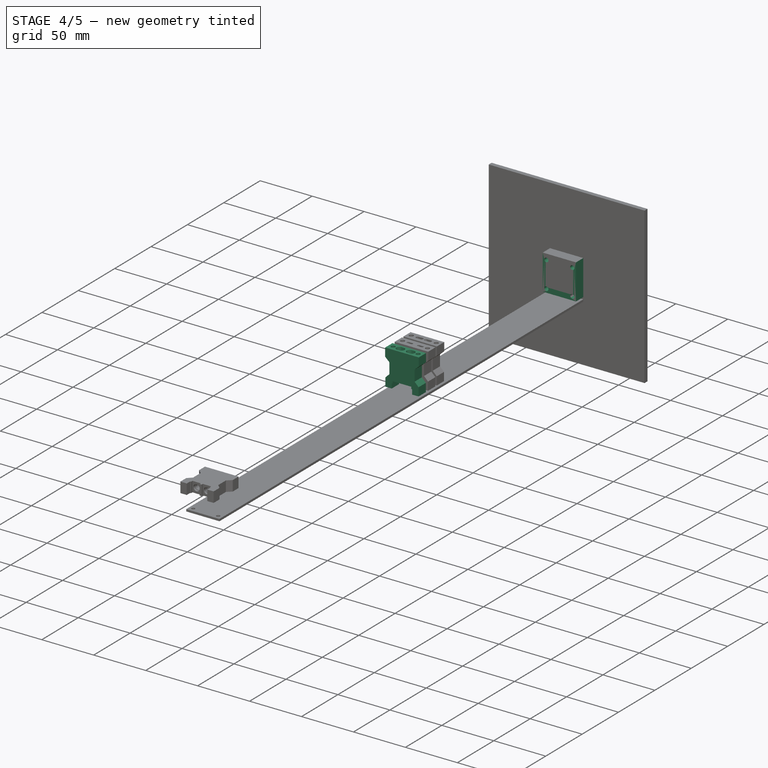
[diagram: stage 4 of 5 — iso view after this stage's code; geometry added in this stage tinted green]
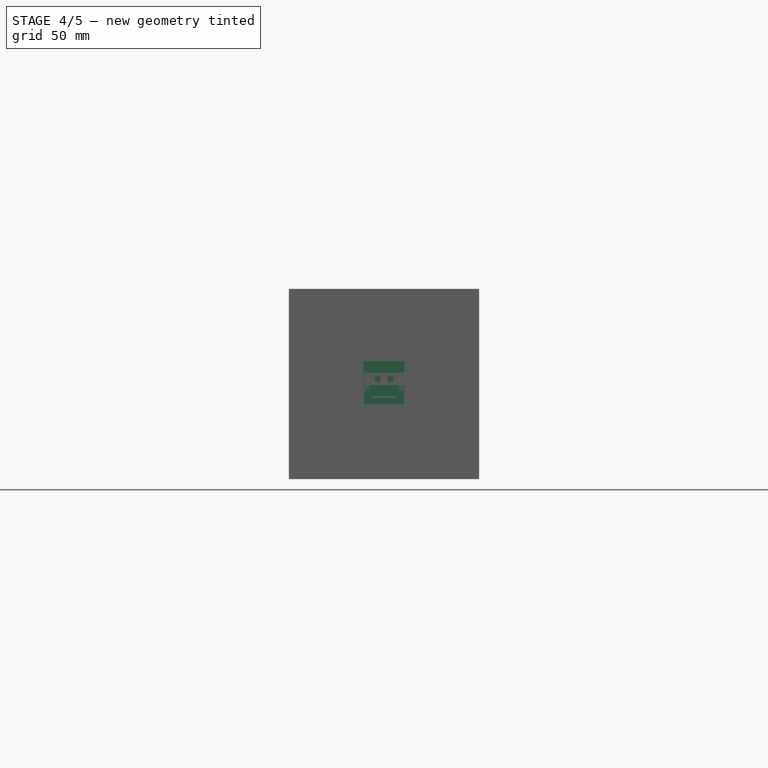
[diagram: stage 4 of 5 — front view after this stage's code; geometry added in this stage tinted green]
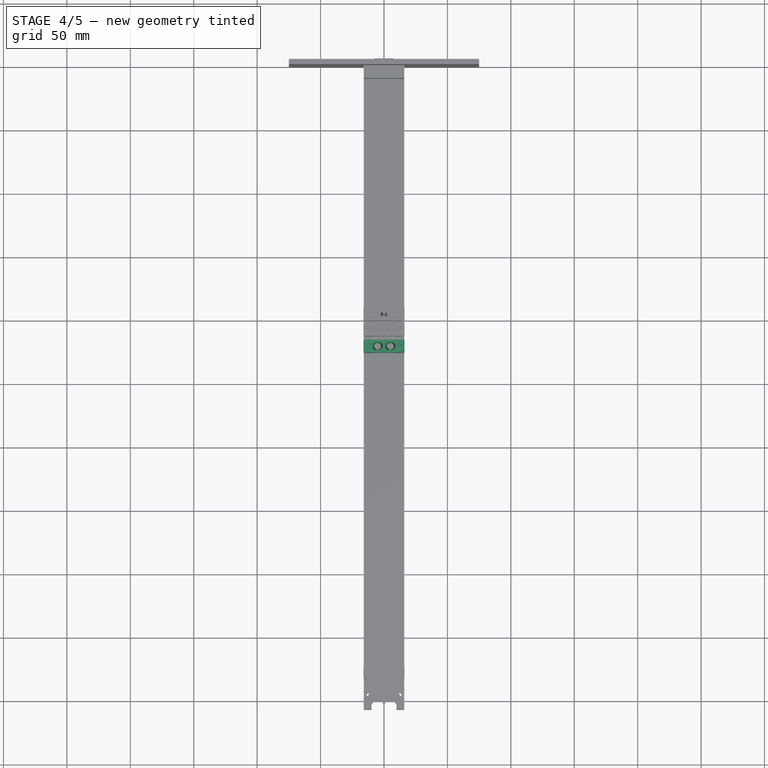
[diagram: stage 4 of 5 — top view after this stage's code; geometry added in this stage tinted green]
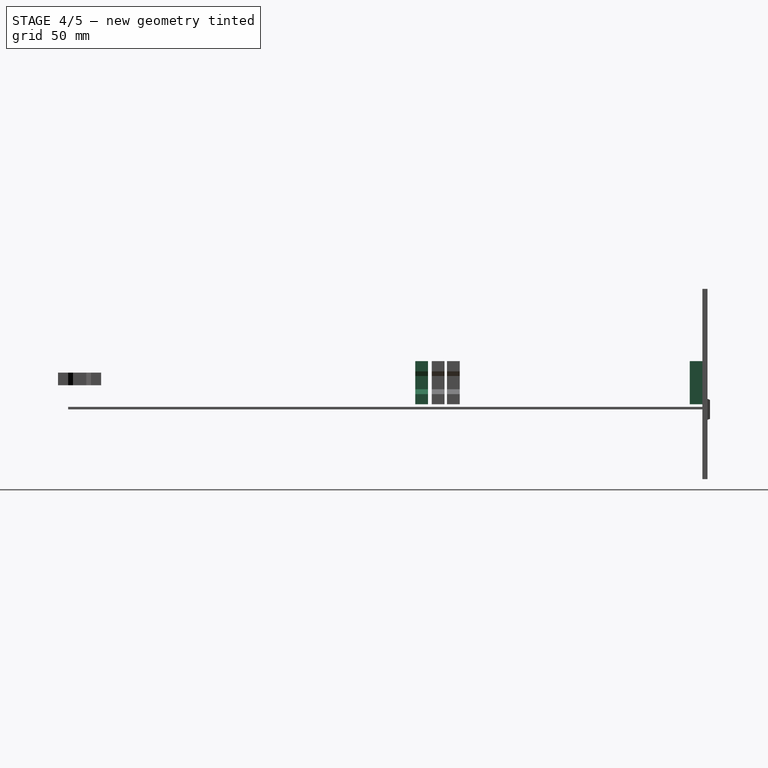
[diagram: stage 4 of 5 — right view after this stage's code; geometry added in this stage tinted green]
FEATURE [Sketcher::SketchObject] Sketch027
  FullyConstrained = true
  MapMode = 5
  Placement = pos=(0,0,10.6) rot=(1,0,0;3.14159rad)
  Support = -> [Pad017]
  sketch-geometry (3):
    g0: Circle CenterX=-5 CenterY=5 CenterZ=0 NormalX=0 NormalY=0 NormalZ=1 AngleXU=0 Radius=2.6
    g1: Circle CenterX=5 CenterY=5 CenterZ=0 NormalX=0 NormalY=0 NormalZ=1 AngleXU=0 Radius=2.6
    g2: LineSegment StartX=-5 StartY=5 StartZ=0 EndX=5 EndY=5 EndZ=0
  constraints (7):
    c: Coincident(g2,g0)
    c: Coincident(g2,g1)
    c: Equal(g0,g1)
    c: Radius(g0) = 2.6
    c: Symmetric(g0,g1,g-2)
    c: DistanceY(g0) = 5
    c: DistanceX(g2,g2) = 10
FEATURE [PartDesign::Pocket] Pocket008
  BaseFeature = -> Pad017
  Direction = (0,-2e-16,1)
  Length = 2
  Length2 = 5
  Placement = pos=(0,0,0) rot=(1,0,0;1.5708rad)
  Profile = -> Sketch027
  ReferenceAxis = -> Sketch027 [N_Axis]
  Type = 1
FEATURE [Sketcher::SketchObject] Sketch028
  ExternalGeometry = -> [Pocket008]
  FullyConstrained = true
  MapMode = 5
  Placement = pos=(0,0,10.6) rot=(1,0,0;3.14159rad)
  Support = -> [Pocket008]
  sketch-geometry (2):
    g0: Circle CenterX=-5 CenterY=5 CenterZ=0 NormalX=0 NormalY=0 NormalZ=1 AngleXU=0 Radius=3
    g1: Circle CenterX=5 CenterY=5 CenterZ=0 NormalX=0 NormalY=0 NormalZ=1 AngleXU=0 Radius=3
  constraints (4):
    c: Radius(g0) = 3
    c: Equal(g1,g0)
    c: Coincident(g1,g-4)
    c: Coincident(g0,g-3)
FEATURE [PartDesign::Pocket] Pocket009
  BaseFeature = -> Pocket008
  Direction = (0,-2e-16,1)
  Length = 10
  Length2 = 5
  Placement = pos=(0,0,0) rot=(1,0,0;1.5708rad)
  Profile = -> Sketch028
  ReferenceAxis = -> Sketch028 [N_Axis]
  Type = 0
FEATURE [PartDesign::Body] Body003  label="ABS-Top"
  Group = -> [Sketch003,Pad003,Sketch006,Pad005,Sketch029,Pocket010,Sketch030,Pocket011,Sketch031,Pocket012]
  Origin = -> Origin009
  Placement = pos=(0,-1000,0) rot=(0,0,1;0rad)
  Tip = -> Pocket012
FEATURE [Sketcher::SketchObject] Sketch032
  FullyConstrained = true
  MapMode = 5
  Placement = pos=(0,0,0) rot=(1,0,0;1.5708rad)
  Support = -> [XZ_Plane018]
  sketch-geometry (13):
    g0: LineSegment StartX=-20 StartY=40 StartZ=0 EndX=20 EndY=40 EndZ=0
    g1: LineSegment StartX=20 StartY=40 StartZ=0 EndX=20 EndY=0 EndZ=0
    g2: LineSegment StartX=20 StartY=0 StartZ=0 EndX=-20 EndY=0 EndZ=0
    g3: LineSegment StartX=-20 StartY=0 StartZ=0 EndX=-20 EndY=40 EndZ=0
    g4: Circle CenterX=-12.5 CenterY=7.5 CenterZ=0 NormalX=0 NormalY=0 NormalZ=1 AngleXU=0 Radius=2
    g5: Circle CenterX=-12.5 CenterY=32.5 CenterZ=0 NormalX=0 NormalY=0 NormalZ=1 AngleXU=0 Radius=2
    g6: Circle CenterX=12.5 CenterY=32.5 CenterZ=0 NormalX=0 NormalY=0 NormalZ=1 AngleXU=0 Radius=2
    g7: Circle CenterX=12.5 CenterY=7.5 CenterZ=0 NormalX=0 NormalY=0 NormalZ=1 AngleXU=0 Radius=2
    g8: LineSegment StartX=-12.5 StartY=32.5 StartZ=0 EndX=12.5 EndY=32.5 EndZ=0
    g9: LineSegment StartX=12.5 StartY=32.5 StartZ=0 EndX=12.5 EndY=7.5 EndZ=0
    g10: LineSegment StartX=12.5 StartY=7.5 StartZ=0 EndX=-12.5 EndY=7.5 EndZ=0
    g11: LineSegment StartX=-12.5 StartY=7.5 StartZ=0 EndX=-12.5 EndY=32.5 EndZ=0
    g12: LineSegment StartX=-20 StartY=20 StartZ=0 EndX=20 EndY=20 EndZ=0
  constraints (33):
    c: Horizontal(g2)
    c: Vertical(g1)
    c: Vertical(g3)
    c: DistanceY(g2,g0) = 40
    c: DistanceX(g3,g1) = 40
    c: Symmetric(g3,g1,g-2)
    c: Coincident(g8,g9)
    c: Coincident(g9,g10)
    c: Coincident(g10,g11)
    c: Coincident(g11,g8)
    c: Horizontal(g10)
    c: Vertical(g9)
    c: Vertical(g11)
    c: Coincident(g8,g5)
    c: Coincident(g9,g7)
    c: Coincident(g6,g8)
    c: Coincident(g4,g10)
    c: Equal(g4,g5)
    c: Equal(g5,g6)
    c: Equal(g6,g7)
    c: Diameter(g6) = 4
    c: Equal(g8,g9)
    c: DistanceX(g8,g8) = 25
    c: Symmetric(g5,g6,g-2)
    c: PointOnObject(g2,g-1)
    c: Coincident(g0,g3)
    c: Coincident(g0,g1)
    c: Coincident(g1,g2)
    c: Coincident(g2,g3)
    c: PointOnObject(g12,g3)
    c: PointOnObject(g12,g1)
    c: DistanceY(g12) = 20
    c: Symmetric(g7,g6,g12)
FEATURE [PartDesign::Pad] Pad018
  Direction = (0,-1,-2e-16)
  Length = 2
  Length2 = 10
  Placement = pos=(0,0,0) rot=(1,0,0;1.5708rad)
  Profile = -> Sketch032
  ReferenceAxis = -> Sketch032 [N_Axis]
  Reversed = true
  Type = 0
FEATURE [Sketcher::SketchObject] Sketch033
  FullyConstrained = true
  MapMode = 5
  Placement = pos=(0,0,0) rot=(1,0,0;1.5708rad)
  Support = -> [Pad018]
  sketch-geometry (12):
    g0: LineSegment StartX=-16 StartY=38 StartZ=0 EndX=16 EndY=38 EndZ=0
    g1: LineSegment StartX=16 StartY=38 StartZ=0 EndX=16 EndY=4 EndZ=0
    g2: LineSegment StartX=16 StartY=4 StartZ=0 EndX=-16 EndY=4 EndZ=0
    g3: LineSegment StartX=-16 StartY=4 StartZ=0 EndX=-16 EndY=38 EndZ=0
    g4: Circle CenterX=-12.5 CenterY=32.5 CenterZ=0 NormalX=0 NormalY=0 NormalZ=1 AngleXU=0 Radius=2
    g5: Circle CenterX=12.5 CenterY=32.5 CenterZ=0 NormalX=0 NormalY=0 NormalZ=1 AngleXU=0 Radius=2
    g6: Circle CenterX=-12.5 CenterY=7.5 CenterZ=0 NormalX=0 NormalY=0 NormalZ=1 AngleXU=0 Radius=2
    g7: Circle CenterX=12.5 CenterY=7.5 CenterZ=0 NormalX=0 NormalY=0 NormalZ=1 AngleXU=0 Radius=2
    g8: LineSegment StartX=-12.5 StartY=32.5 StartZ=0 EndX=12.5 EndY=32.5 EndZ=0
    g9: LineSegment StartX=12.5 StartY=32.5 StartZ=0 EndX=12.5 EndY=7.5 EndZ=0
    g10: LineSegment StartX=12.5 StartY=7.5 StartZ=0 EndX=-12.5 EndY=7.5 EndZ=0
    g11: LineSegment StartX=-12.5 StartY=7.5 StartZ=0 EndX=-12.5 EndY=32.5 EndZ=0
  constraints (30):
    c: Coincident(g0,g1)
    c: Coincident(g1,g2)
    c: Coincident(g2,g3)
    c: Coincident(g3,g0)
    c: Horizontal(g2)
    c: Vertical(g1)
    c: Vertical(g3)
    c: Symmetric(g0,g0,g-2)
    c: DistanceX(g0,g0) = 32
    c: DistanceY(g3,g3) = 34
    c: DistanceY(g1) = 4
    c: Coincident(g8,g9)
    c: Coincident(g9,g10)
    c: Coincident(g10,g11)
    c: Coincident(g11,g8)
    c: Horizontal(g8)
    c: Vertical(g9)
    c: Vertical(g11)
    c: Coincident(g8,g4)
    c: Coincident(g9,g7)
    c: Coincident(g6,g10)
    c: Coincident(g5,g8)
    c: Equal(g6,g4)
    c: Equal(g4,g5)
    c: Equal(g5,g7)
    c: Symmetric(g6,g7,g-2)
    c: DistanceX(g8,g8) = 25
    c: Radius(g5) = 2
    c: DistanceY(g7) = 7.5
    c: Equal(g9,g8)
FEATURE [PartDesign::Pad] Pad019
  BaseFeature = -> Pad018
  Direction = (0,-1,-2e-16)
  Length = 10
  Length2 = 10
  Placement = pos=(0,0,0) rot=(1,0,0;1.5708rad)
  Profile = -> Sketch033
  ReferenceAxis = -> Sketch033 [N_Axis]
  Type = 0
FEATURE [Sketcher::SketchObject] Sketch034
  FullyConstrained = true
  MapMode = 5
  Placement = pos=(-16,0,0) rot=(0.707107,0,-0.707107;3.14159rad)
  Support = -> [Pad019]
  sketch-geometry (3):
    g0: Circle CenterX=-28 CenterY=5 CenterZ=0 NormalX=0 NormalY=0 NormalZ=1 AngleXU=0 Radius=2
    g1: Circle CenterX=-12 CenterY=5 CenterZ=0 NormalX=0 NormalY=0 NormalZ=1 AngleXU=0 Radius=2
    g2: LineSegment StartX=-28 StartY=5 StartZ=0 EndX=-12 EndY=5 EndZ=0
  constraints (8):
    c: Equal(g0,g1)
    c: Coincident(g2,g0)
    c: Coincident(g2,g1)
    c: Horizontal(g2)
    c: DistanceX(g2,g2) = 16
    c: Diameter(g0) = 4
    c: DistanceY(g1) = 5
    c: DistanceX(g1) = -12
FEATURE [PartDesign::Pocket] Pocket013
  BaseFeature = -> Pad019
  Direction = (1,0,2e-16)
  Length = 8
  Length2 = 5
  Placement = pos=(0,0,0) rot=(1,0,0;1.5708rad)
  Profile = -> Sketch034
  ReferenceAxis = -> Sketch034 [N_Axis]
  Type = 0
FEATURE [PartDesign::Body] Body015  label="Acrylic-front-bottom"
  Group = -> [Sketch042,Pad021]
  Origin = -> Origin021
  Placement = pos=(0,0,38) rot=(0,0,1;0rad)
  Tip = -> Pad021
FEATURE [Part::Loft] Loft001
  Closed = false
  MaxDegree = 5
  Ruled = false
  Solid = true
FEATURE [Part::Mirroring] Part__Mirroring001  label="Loft001 (Mirror #2)"
  Base = (0,0,0)
  Normal = (1,0,0)
  Source = -> Loft001
FEATURE [Part::MultiFuse] Fusion001
  Shapes = -> [Loft001,Part__Mirroring001]
FEATURE [Sketcher::SketchObject] Sketch047
  FullyConstrained = true
  MapMode = 5
  Placement = pos=(0,0,38) rot=(0,0,1;3.14159rad)
  Support = -> [Pocket009]
  sketch-geometry (3):
    g0: Circle CenterX=-12 CenterY=5 CenterZ=0 NormalX=0 NormalY=0 NormalZ=1 AngleXU=0 Radius=2
    g1: Circle CenterX=12 CenterY=5 CenterZ=0 NormalX=0 NormalY=0 NormalZ=1 AngleXU=0 Radius=2
    g2: LineSegment StartX=-12 StartY=5 StartZ=0 EndX=12 EndY=5 EndZ=0
  constraints (7):
    c: Coincident(g2,g0)
    c: Coincident(g2,g1)
    c: Symmetric(g0,g1,g-2)
    c: DistanceX(g2,g2) = 24
    c: Equal(g0,g1)
    c: Radius(g1) = 2
    c: DistanceY(g0) = 5
FEATURE [PartDesign::Pocket] Pocket018
  BaseFeature = -> Pocket009
  Direction = (0,2e-16,-1)
  Length = 8
  Length2 = 5
  Placement = pos=(0,0,0) rot=(1,0,0;1.5708rad)
  Profile = -> Sketch047
  ReferenceAxis = -> Sketch047 [N_Axis]
  Type = 0
FEATURE [PartDesign::Body] Body011
  Group = -> [Sketch026,Pad017,Sketch027,Pocket008,Sketch028,Pocket009,Sketch047,Pocket018]
  Origin = -> Origin017
  Placement = pos=(0,5,0) rot=(0,0,1;0rad)
  Tip = -> Pocket018
FEATURE [Part::Cut] Cut  label="Sensor-holder"
  Base = -> Body011
  Placement = pos=(0,-221.33,0) rot=(0,0,1;0rad)
  Tool = -> Fusion001
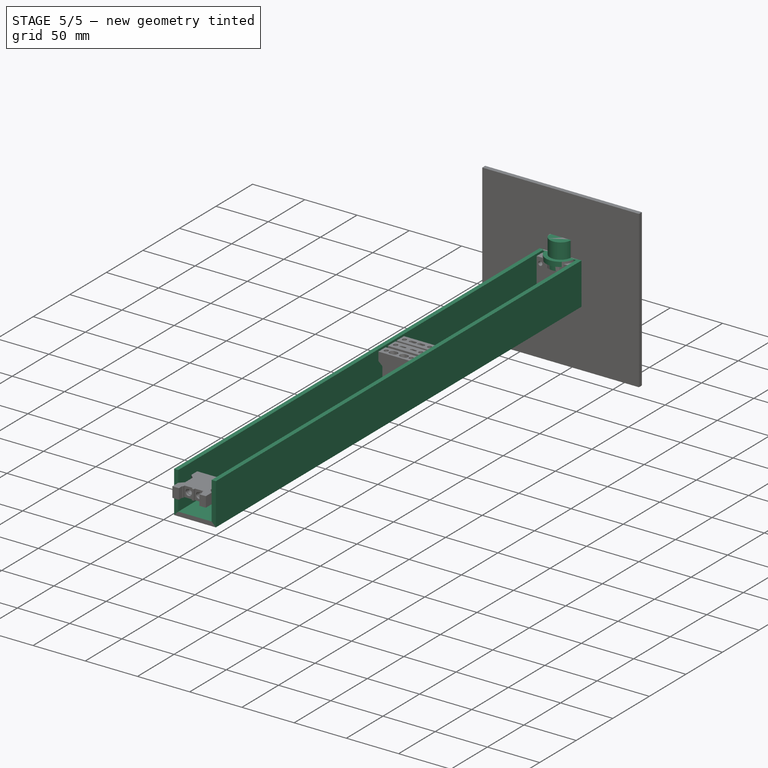
[diagram: stage 5 of 5 — iso view after this stage's code; geometry added in this stage tinted green]
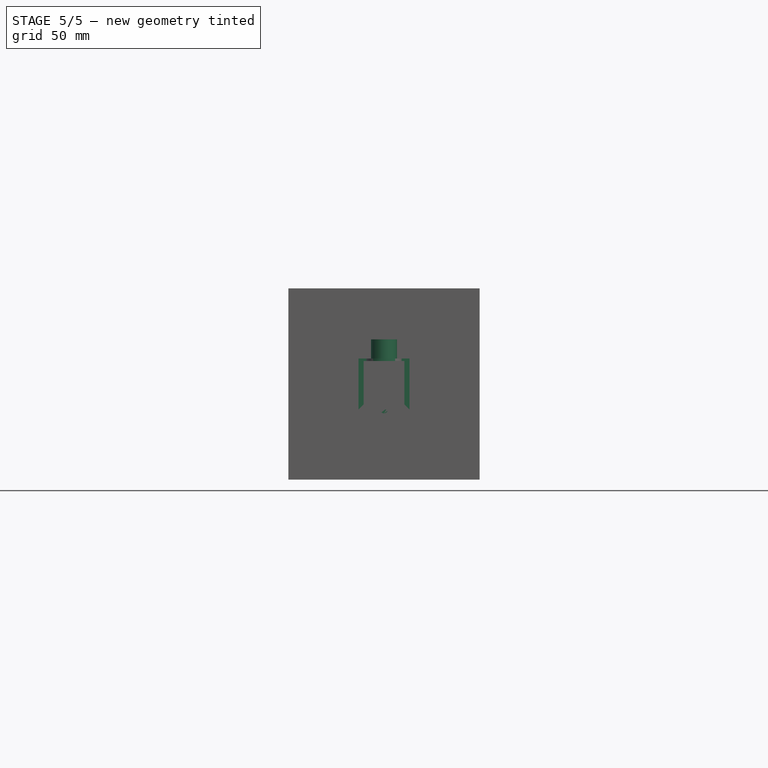
[diagram: stage 5 of 5 — front view after this stage's code; geometry added in this stage tinted green]
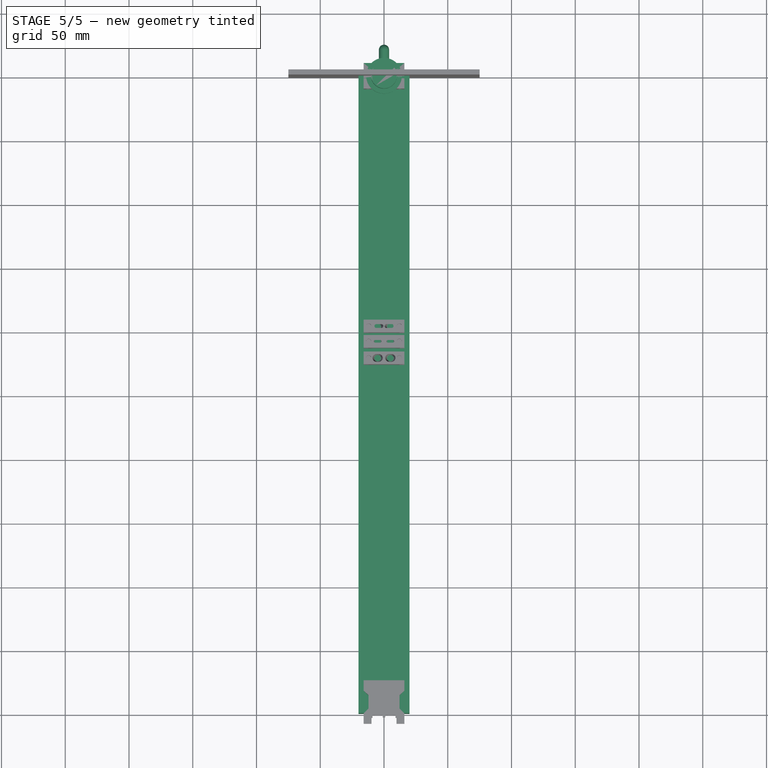
[diagram: stage 5 of 5 — top view after this stage's code; geometry added in this stage tinted green]
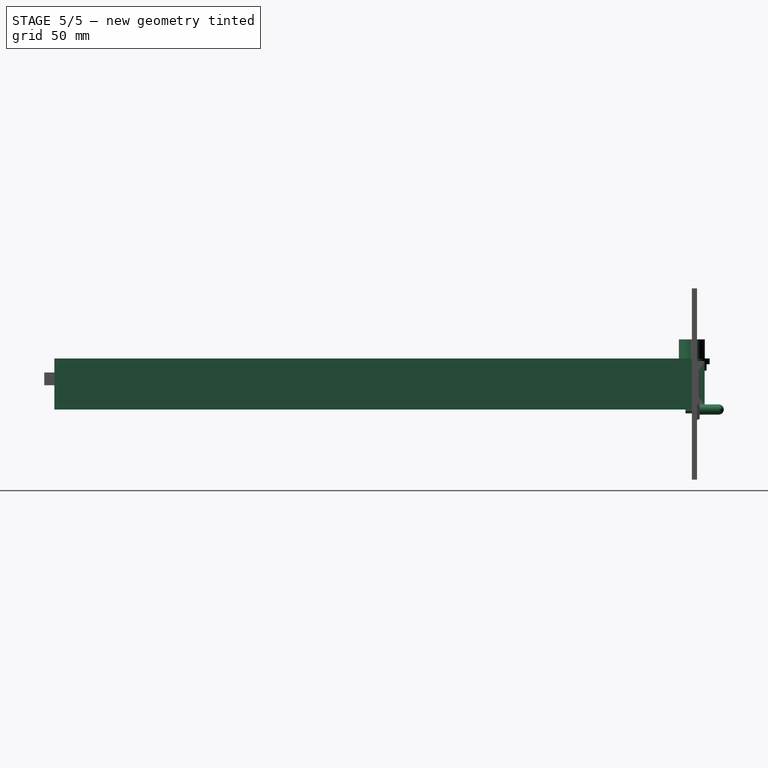
[diagram: stage 5 of 5 — right view after this stage's code; geometry added in this stage tinted green]
FEATURE [Sketcher::SketchObject] Sketch
  FullyConstrained = true
  MapMode = 5
  Placement = pos=(0,0,0) rot=(1,0,0;1.5708rad)
  sketch-geometry (8):
    g0: LineSegment StartX=-20 StartY=40 StartZ=0 EndX=-20 EndY=0 EndZ=0
    g1: LineSegment StartX=-20 StartY=0 StartZ=0 EndX=20 EndY=-1e-16 EndZ=0
    g2: LineSegment StartX=20 StartY=-1e-16 StartZ=0 EndX=20 EndY=40 EndZ=0
    g3: LineSegment StartX=20 StartY=40 StartZ=0 EndX=16 EndY=40 EndZ=0
    g4: LineSegment StartX=16 StartY=4 StartZ=0 EndX=-16 EndY=4 EndZ=0
    g5: LineSegment StartX=-16 StartY=40 StartZ=0 EndX=-20 EndY=40 EndZ=0
    g6: LineSegment StartX=-16 StartY=40 StartZ=0 EndX=-16 EndY=4 EndZ=0
    g7: LineSegment StartX=16 StartY=40 StartZ=0 EndX=16 EndY=4 EndZ=0
  constraints (22):
    c: Vertical(g0)
    c: Coincident(g0,g1)
    c: Coincident(g1,g2)
    c: Coincident(g2,g3)
    c: Horizontal(g3)
    c: Coincident(g5,g0)
    c: Horizontal(g5)
    c: DistanceY(g0,g0) = 40
    c: PointOnObject(g0,g-1)
    c: DistanceX(g1,g1) = 40
    c: Symmetric(g0,g1,g-2)
    c: Symmetric(g0,g2,g-2)
    c: Equal(g3,g5)
    c: DistanceX(g5,g5) = 4
    c: Coincident(g6,g5)
    c: Coincident(g6,g4)
    c: Vertical(g6)
    c: Coincident(g7,g3)
    c: Coincident(g7,g4)
    c: Vertical(g7)
    c: DistanceY(g0,g4) = 4
    c: Horizontal(g4)
FEATURE [PartDesign::Pad] Pad
  Direction = (0,-1,2e-16)
  Length = 500
  Length2 = 10
  Placement = pos=(0,0,0) rot=(1,0,0;1.5708rad)
  Profile = -> Sketch
  ReferenceAxis = -> Sketch [N_Axis]
  Type = 0
FEATURE [PartDesign::Body] Body  label="Aluminium-Profile"
  Group = -> [Sketch,Pad]
  Origin = -> Origin
  Tip = -> Pad
FEATURE [Part::Feature] Part__Feature  label="SOLID"
  shape: bbox 6 x 8.7 x 1.75 mm, 246 faces (baked)
FEATURE [App::Part] SOIC_14_3_9x8_7mm_P1_27mm  label="SOIC-14_3.9x8.7mm_P1.27mm"
  Group = -> [Part__Feature]
  Origin = -> Origin002
  Placement = pos=(75.625,-60,1.65) rot=(0,0,1;0rad)
FEATURE [Part::Feature] Part__Feature001  label="SOLID001"
  shape: bbox 3.2 x 2.5 x 1.1 mm, 50 faces (baked)
FEATURE [App::Part] LED_1210_3225Metric
  Group = -> [Part__Feature001]
  Origin = -> Origin003
  Placement = pos=(59,-65,1.65) rot=(0,0,1;1.5708rad)
FEATURE [Part::Feature] Part__Feature002  label="SOLID002"
  shape: bbox 3.2 x 2.5 x 1.1 mm, 50 faces (baked)
FEATURE [App::Part] LED_1210_3225Metric001
  Group = -> [Part__Feature002]
  Origin = -> Origin004
  Placement = pos=(59,-55,1.65) rot=(0,0,1;1.5708rad)
FEATURE [Part::Feature] Part__Feature003  label="IR-sensor PCB"
  shape: bbox 52.5 x 20 x 1.6 mm, 10 faces (baked)
FEATURE [App::Part] IR_sensor_1  label="IR-sensor 1"
  Group = -> [SOIC_14_3_9x8_7mm_P1_27mm,LED_1210_3225Metric,LED_1210_3225Metric001,Part__Feature003]
  Origin = -> Origin005
  Placement = pos=(-60,-504,83) rot=(0.57735,-0.57735,-0.57735;4.18879rad)
FEATURE [Part::Feature] Part__Feature004  label="SOLID003"
  shape: bbox 18 x 19.2 x 3.2 mm, 766 faces (baked)
FEATURE [App::Part] ESP32_WROOM_32U  label="ESP32-WROOM-32U"
  Group = -> [Part__Feature004]
  Origin = -> Origin006
  Placement = pos=(140,-61,1.65) rot=(0,0,-1;1.5708rad)
FEATURE [Part::Feature] Part__Feature005  label="Receiver PCB"
  shape: bbox 100 x 22 x 1.6 mm, 18 faces (baked)
FEATURE [App::Part] Receiver_1  label="PCB-Receiver -A1"
  Group = -> [ESP32_WROOM_32U,Part__Feature005]
  Origin = -> Origin007
  Placement = pos=(66,-840,5.2) rot=(0,0,1;-1.5708rad)
FEATURE [Sketcher::SketchObject] Sketch003
  FullyConstrained = true
  MapMode = 5
  Placement = pos=(0,0,0) rot=(1,0,0;1.5708rad)
  Support = -> [XZ_Plane009]
  sketch-geometry (7):
    g0: LineSegment StartX=-20 StartY=40 StartZ=0 EndX=20 EndY=40 EndZ=0
    g1: LineSegment StartX=20 StartY=40 StartZ=0 EndX=20 EndY=0 EndZ=0
    g2: LineSegment StartX=20 StartY=0 StartZ=0 EndX=-20 EndY=0 EndZ=0
    g3: LineSegment StartX=-20 StartY=0 StartZ=0 EndX=-20 EndY=40 EndZ=0
    g4: Circle CenterX=0 CenterY=20 CenterZ=0 NormalX=0 NormalY=0 NormalZ=1 AngleXU=0 Radius=2.05
    g5: LineSegment StartX=0 StartY=20 StartZ=0 EndX=20 EndY=40 EndZ=0
    g6: LineSegment StartX=0 StartY=20 StartZ=0 EndX=20 EndY=0 EndZ=0
  constraints (18):
    c: Horizontal(g2)
    c: Vertical(g1)
    c: Vertical(g3)
    c: DistanceY(g2,g0) = 40
    c: DistanceX(g3,g1) = 40
    c: PointOnObject(g4,g-2)
    c: Coincident(g5,g4)
    c: Coincident(g6,g4)
    c: Equal(g6,g5)
    c: Diameter(g4) = 4.1
    c: Symmetric(g0,g0,g-2)
    c: Coincident(g0,g3)
    c: Coincident(g0,g1)
    c: Coincident(g0,g5)
    c: Coincident(g1,g2)
    c: Coincident(g1,g6)
    c: Coincident(g2,g3)
    c: PointOnObject(g1,g-1)
FEATURE [PartDesign::Pad] Pad003
  Direction = (0,-1,-2e-16)
  Length = 2
  Length2 = 10
  Placement = pos=(0,0,0) rot=(1,0,0;1.5708rad)
  Profile = -> Sketch003
  ReferenceAxis = -> Sketch003 [N_Axis]
  Type = 0
FEATURE [Sketcher::SketchObject] Sketch004
  FullyConstrained = true
  MapMode = 5
  Support = -> [XY_Plane010]
  sketch-geometry (6):
    g0: ArcOfCircle CenterX=0 CenterY=21 CenterZ=0 NormalX=0 NormalY=0 NormalZ=1 AngleXU=0 Radius=4 StartAngle=5e-16 EndAngle=1.5708
    g1: LineSegment StartX=4 StartY=21 StartZ=0 EndX=4 EndY=2 EndZ=0
    g2: LineSegment StartX=4 StartY=2 StartZ=0 EndX=3 EndY=2 EndZ=0
    g3: LineSegment StartX=3 StartY=2 StartZ=0 EndX=3 EndY=-5 EndZ=0
    g4: LineSegment StartX=3 StartY=-5 StartZ=0 EndX=0 EndY=-5 EndZ=0
    g5: LineSegment StartX=0 StartY=-5 StartZ=0 EndX=2e-16 EndY=25 EndZ=0
  constraints (18):
    c: PointOnObject(g0,g-2)
    c: PointOnObject(g0,g-2)
    c: DistanceX(g1) = 4
    c: Vertical(g1)
    c: Coincident(g2,g1)
    c: Horizontal(g2)
    c: Coincident(g3,g2)
    c: Vertical(g3)
    c: Coincident(g4,g3)
    c: PointOnObject(g4,g-2)
    c: Horizontal(g4)
    c: Coincident(g5,g4)
    c: Coincident(g5,g0)
    c: DistanceY(g4) = -5
    c: DistanceY(g2) = 2
    c: DistanceY(g5,g5) = 30
    c: DistanceX(g3) = 3
    c: Tangent(g0,g1) = 1.5708
FEATURE [PartDesign::Revolution] Revolution
  Angle = 360
  Axis = (0,1,0)
  Base = (0,0,0)
  Profile = -> Sketch004
  ReferenceAxis = -> Sketch004 [V_Axis]
  Reversed = true
FEATURE [PartDesign::Body] Body004  label="Antenna"
  Group = -> [Sketch004,Revolution]
  Origin = -> Origin010
  Placement = pos=(0,-1000,21.5) rot=(0,0,1;3.14159rad)
  Tip = -> Revolution
FEATURE [Sketcher::SketchObject] Sketch006
  FullyConstrained = true
  MapMode = 5
  Placement = pos=(0,0,0) rot=(-1,0,0;1.5708rad)
  Support = -> [Pad003]
  sketch-geometry (8):
    g0: LineSegment StartX=-16 StartY=-4 StartZ=0 EndX=16 EndY=-4 EndZ=0
    g1: LineSegment StartX=16 StartY=-4 StartZ=0 EndX=16 EndY=-38 EndZ=0
    g2: LineSegment StartX=16 StartY=-38 StartZ=0 EndX=-16 EndY=-38 EndZ=0
    g3: LineSegment StartX=-16 StartY=-38 StartZ=0 EndX=-16 EndY=-4 EndZ=0
    g4: LineSegment StartX=-7 StartY=-13 StartZ=0 EndX=7 EndY=-13 EndZ=0
    g5: LineSegment StartX=7 StartY=-13 StartZ=0 EndX=7 EndY=-29 EndZ=0
    g6: LineSegment StartX=7 StartY=-29 StartZ=0 EndX=-7 EndY=-29 EndZ=0
    g7: LineSegment StartX=-7 StartY=-29 StartZ=0 EndX=-7 EndY=-13 EndZ=0
  constraints (22):
    c: Coincident(g0,g1)
    c: Coincident(g1,g2)
    c: Coincident(g2,g3)
    c: Coincident(g3,g0)
    c: Horizontal(g0)
    c: Vertical(g1)
    c: Vertical(g3)
    c: Coincident(g4,g5)
    c: Coincident(g5,g6)
    c: Coincident(g6,g7)
    c: Coincident(g7,g4)
    c: Horizontal(g4)
    c: Vertical(g5)
    c: Vertical(g7)
    c: DistanceX(g2,g2) = 32
    c: Symmetric(g1,g2,g-2)
    c: Symmetric(g5,g6,g-2)
    c: DistanceY(g1,g1) = 34
    c: DistanceY(g0) = -4
    c: DistanceX(g4,g0) = 9
    c: DistanceY(g4,g0) = 9
    c: DistanceY(g1,g5) = 9
FEATURE [PartDesign::Pad] Pad005
  BaseFeature = -> Pad003
  Direction = (0,1,2e-16)
  Length = 10
  Length2 = 10
  Placement = pos=(0,0,0) rot=(1,0,0;1.5708rad)
  Profile = -> Sketch006
  ReferenceAxis = -> Sketch006 [N_Axis]
  Type = 0
FEATURE [Sketcher::SketchObject] Sketch017
  FullyConstrained = true
  MapMode = 5
  Placement = pos=(0,0,0) rot=(1,0,0;1.5708rad)
  Support = -> [XZ_Plane014]
  sketch-geometry (8):
    g0: LineSegment StartX=0 StartY=30.5 StartZ=0 EndX=11.5 EndY=30.5 EndZ=0
    g1: LineSegment StartX=11.5 StartY=30.5 StartZ=0 EndX=11.5 EndY=35.5 EndZ=0
    g2: LineSegment StartX=11.5 StartY=35.5 StartZ=0 EndX=14 EndY=35.5 EndZ=0
    g3: LineSegment StartX=14 StartY=35.5 StartZ=0 EndX=14 EndY=40 EndZ=0
    g4: LineSegment StartX=14 StartY=40 StartZ=0 EndX=10.2 EndY=40 EndZ=0
    g5: LineSegment StartX=10.2 StartY=40 StartZ=0 EndX=10.2 EndY=55 EndZ=0
    g6: LineSegment StartX=10.2 StartY=55 StartZ=0 EndX=0 EndY=55 EndZ=0
    g7: LineSegment StartX=0 StartY=55 StartZ=0 EndX=0 EndY=30.5 EndZ=0
  constraints (24):
    c: PointOnObject(g0,g-2)
    c: Coincident(g0,g1)
    c: Coincident(g1,g2)
    c: Horizontal(g2)
    c: Coincident(g2,g3)
    c: Coincident(g3,g4)
    c: Coincident(g4,g5)
    c: Vertical(g5)
    c: Coincident(g5,g6)
    c: Horizontal(g6)
    c: Coincident(g6,g7)
    c: Coincident(g7,g0)
    c: Vertical(g7)
    c: Horizontal(g0)
    c: Vertical(g1)
    c: Vertical(g3)
    c: Horizontal(g4)
    c: DistanceX(g6,g6) = 10.2
    c: DistanceX(g3) = 14
    c: DistanceX(g0) = 11.5
    c: DistanceY(g1,g1) = 5
    c: DistanceY(g3,g3) = 4.5
    c: DistanceY(g5,g5) = 15
    c: DistanceY(g3) = 40
FEATURE [PartDesign::Revolution] Revolution001
  Angle = 360
  Axis = (0,2e-16,1)
  Base = (0,0,0)
  Placement = pos=(0,0,0) rot=(1,0,0;1.5708rad)
  Profile = -> Sketch017
  ReferenceAxis = -> Sketch017 [V_Axis]
  Reversed = true
FEATURE [Sketcher::SketchObject] Sketch029
  FullyConstrained = true
  MapMode = 5
  Placement = pos=(0,0,38) rot=(0,0,1;3.14159rad)
  Support = -> [Pad005]
  sketch-geometry (3):
    g0: LineSegment StartX=-8 StartY=-5 StartZ=0 EndX=8 EndY=-5 EndZ=0
    g1: Circle CenterX=-8 CenterY=-5 CenterZ=0 NormalX=0 NormalY=0 NormalZ=1 AngleXU=0 Radius=2
    g2: Circle CenterX=8 CenterY=-5 CenterZ=0 NormalX=0 NormalY=0 NormalZ=1 AngleXU=0 Radius=2
  constraints (7):
    c: Coincident(g1,g0)
    c: Coincident(g2,g0)
    c: Equal(g2,g1)
    c: Radius(g1) = 2
    c: DistanceX(g0,g0) = 16
    c: DistanceY(g2) = -5
    c: Symmetric(g1,g2,g-2)
FEATURE [PartDesign::Pocket] Pocket010
  BaseFeature = -> Pad005
  Direction = (0,0,-1)
  Length = 8
  Length2 = 5
  Placement = pos=(0,0,0) rot=(1,0,0;1.5708rad)
  Profile = -> Sketch029
  ReferenceAxis = -> Sketch029 [N_Axis]
  Type = 0
FEATURE [Sketcher::SketchObject] Sketch030
  FullyConstrained = true
  MapMode = 5
  Placement = pos=(-16,0,0) rot=(0.707107,0,-0.707107;3.14159rad)
  Support = -> [Pocket010]
  sketch-geometry (3):
    g0: Circle CenterX=-28 CenterY=-5 CenterZ=0 NormalX=0 NormalY=0 NormalZ=1 AngleXU=0 Radius=2
    g1: Circle CenterX=-12 CenterY=-5 CenterZ=0 NormalX=0 NormalY=0 NormalZ=1 AngleXU=0 Radius=2
    g2: LineSegment StartX=-28 StartY=-5 StartZ=0 EndX=-12 EndY=-5 EndZ=0
  constraints (8):
    c: Coincident(g2,g0)
    c: Coincident(g2,g1)
    c: Horizontal(g2)
    c: DistanceX(g2,g2) = 16
    c: Equal(g1,g0)
    c: Radius(g1) = 2
    c: DistanceY(g1) = -5
    c: DistanceX(g1) = -12
FEATURE [PartDesign::Pocket] Pocket011
  BaseFeature = -> Pocket010
  Direction = (1,0,2e-16)
  Length = 8
  Length2 = 5
  Placement = pos=(0,0,0) rot=(1,0,0;1.5708rad)
  Profile = -> Sketch030
  ReferenceAxis = -> Sketch030 [N_Axis]
  Type = 0
FEATURE [Sketcher::SketchObject] Sketch031
  FullyConstrained = true
  MapMode = 5
  Placement = pos=(16,0,0) rot=(0.707107,0,0.707107;3.14159rad)
  Support = -> [Pocket011]
  sketch-geometry (3):
    g0: LineSegment StartX=12 StartY=-5 StartZ=0 EndX=28 EndY=-5 EndZ=0
    g1: Circle CenterX=12 CenterY=-5 CenterZ=0 NormalX=0 NormalY=0 NormalZ=1 AngleXU=0 Radius=2
    g2: Circle CenterX=28 CenterY=-5 CenterZ=0 NormalX=0 NormalY=0 NormalZ=1 AngleXU=0 Radius=2
  constraints (8):
    c: Horizontal(g0)
    c: Coincident(g1,g0)
    c: Coincident(g2,g0)
    c: Equal(g2,g1)
    c: Radius(g1) = 2
    c: DistanceX(g1) = 12
    c: DistanceX(g0,g0) = 16
    c: DistanceY(g1) = -5
FEATURE [PartDesign::Pocket] Pocket012
  BaseFeature = -> Pocket011
  Direction = (-1,0,2e-16)
  Length = 8
  Length2 = 5
  Placement = pos=(0,0,0) rot=(1,0,0;1.5708rad)
  Profile = -> Sketch031
  ReferenceAxis = -> Sketch031 [N_Axis]
  Type = 0
FEATURE [Sketcher::SketchObject] Sketch035
  FullyConstrained = true
  MapMode = 5
  Placement = pos=(0,0,38) rot=(0,0,1;3.14159rad)
  Support = -> [Pocket013]
  sketch-geometry (3):
    g0: Circle CenterX=-8 CenterY=5 CenterZ=0 NormalX=0 NormalY=0 NormalZ=1 AngleXU=0 Radius=2
    g1: Circle CenterX=8 CenterY=5 CenterZ=0 NormalX=0 NormalY=0 NormalZ=1 AngleXU=0 Radius=2
    g2: LineSegment StartX=-8 StartY=5 StartZ=0 EndX=8 EndY=5 EndZ=0
  constraints (7):
    c: Coincident(g2,g0)
    c: Coincident(g2,g1)
    c: Symmetric(g0,g1,g-2)
    c: Equal(g1,g0)
    c: Radius(g0) = 2
    c: DistanceX(g2,g2) = 16
    c: DistanceY(g1) = 5
FEATURE [PartDesign::Pocket] Pocket014
  BaseFeature = -> Pocket013
  Direction = (0,-2e-16,-1)
  Length = 8
  Length2 = 5
  Placement = pos=(0,0,0) rot=(1,0,0;1.5708rad)
  Profile = -> Sketch035
  ReferenceAxis = -> Sketch035 [N_Axis]
  Type = 0
FEATURE [Sketcher::SketchObject] Sketch039
  FullyConstrained = true
  MapMode = 5
  Placement = pos=(16,0,0) rot=(0.707107,0,0.707107;3.14159rad)
  Support = -> [Pocket014]
  sketch-geometry (3):
    g0: Circle CenterX=12 CenterY=5 CenterZ=0 NormalX=0 NormalY=0 NormalZ=1 AngleXU=0 Radius=2
    g1: Circle CenterX=28 CenterY=5 CenterZ=0 NormalX=0 NormalY=0 NormalZ=1 AngleXU=0 Radius=2
    g2: LineSegment StartX=12 StartY=5 StartZ=0 EndX=28 EndY=5 EndZ=0
  constraints (8):
    c: Equal(g1,g0)
    c: Coincident(g2,g0)
    c: Coincident(g2,g1)
    c: Horizontal(g2)
    c: DistanceX(g2,g2) = 16
    c: DistanceY(g0) = 5
    c: DistanceX(g0) = 12
    c: Radius(g0) = 2
FEATURE [PartDesign::Pocket] Pocket015
  BaseFeature = -> Pocket014
  Direction = (-1,0,2e-16)
  Length = 8
  Length2 = 5
  Placement = pos=(0,0,0) rot=(1,0,0;1.5708rad)
  Profile = -> Sketch039
  ReferenceAxis = -> Sketch039 [N_Axis]
  Type = 0
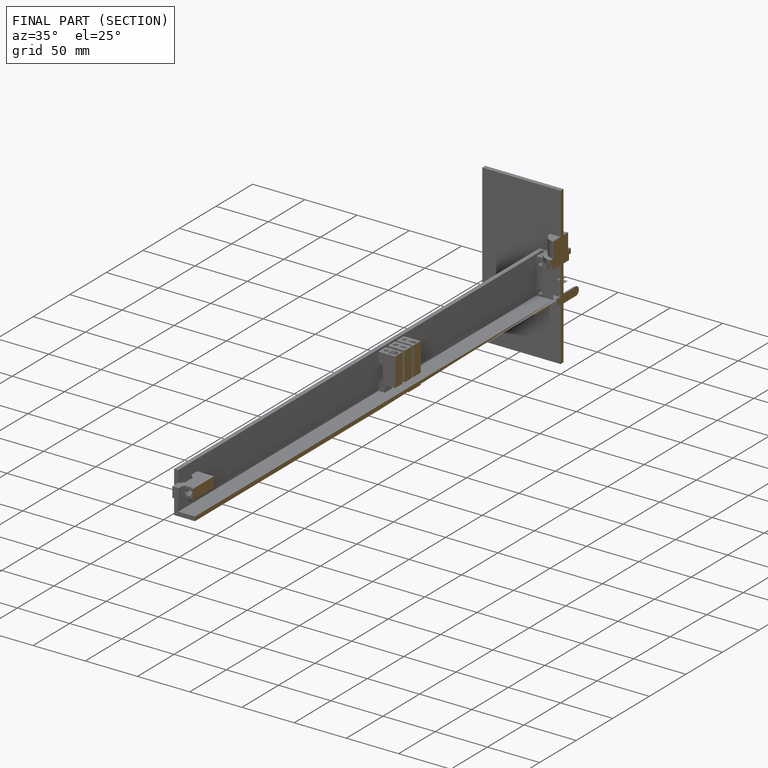
[diagram: finished part — half-section view (interior)]
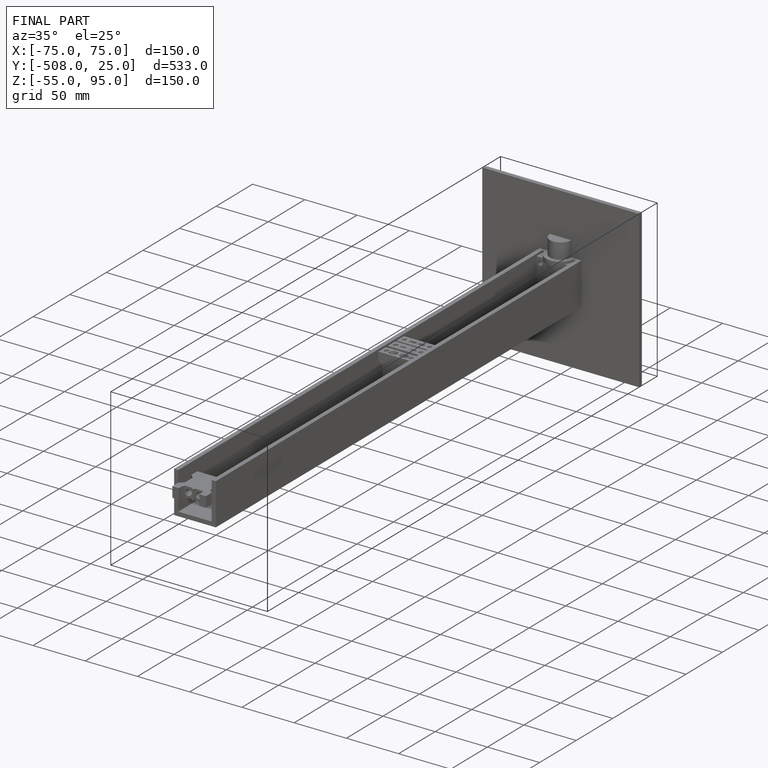
[diagram: finished part — iso view with bounding-box wireframe]
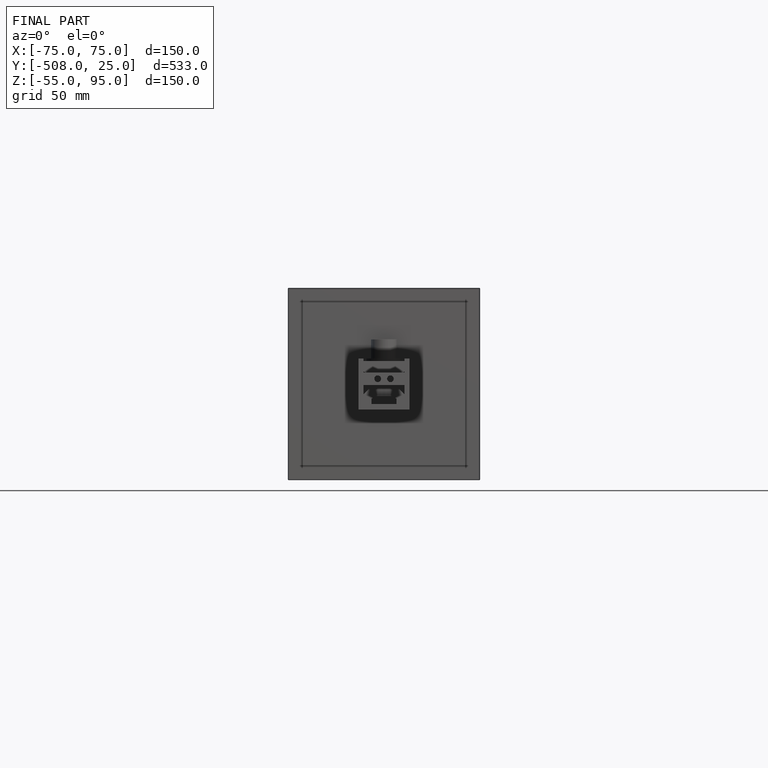
[diagram: finished part — front view with bounding-box wireframe]
